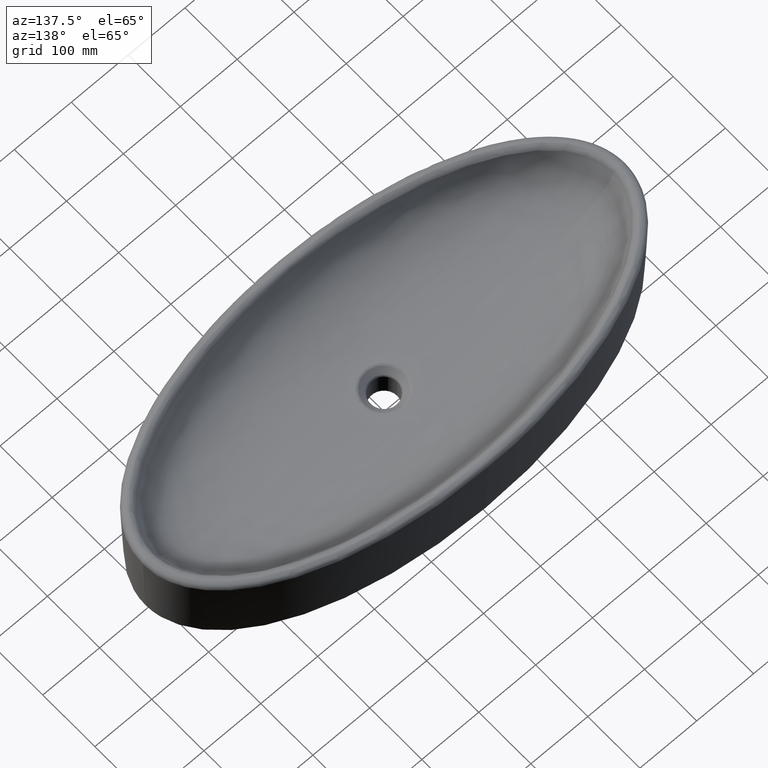
[diagram: clean part render]
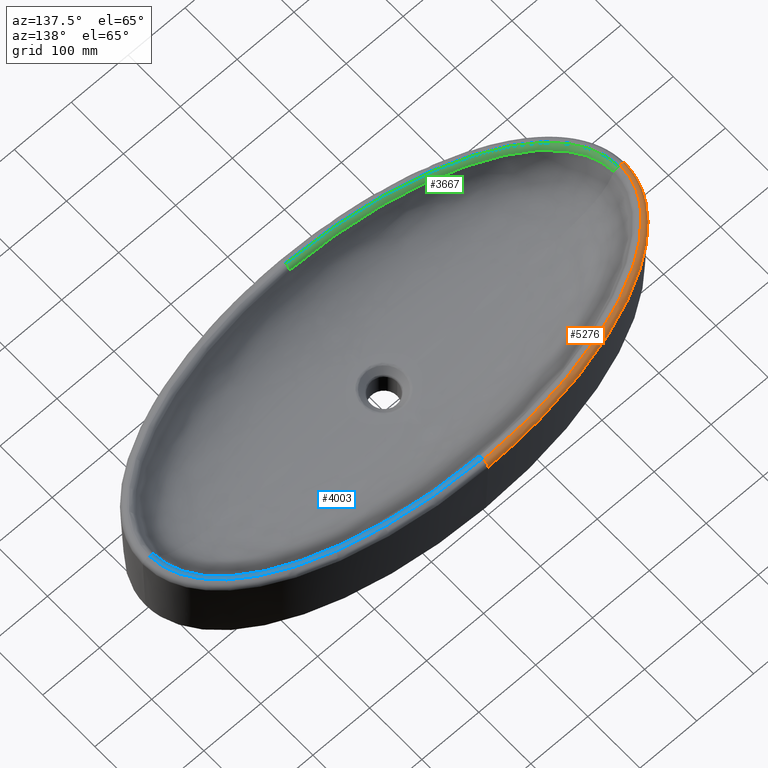
[diagram: same view with three faces highlighted in distinct colors, each labeled with its STEP entity id]
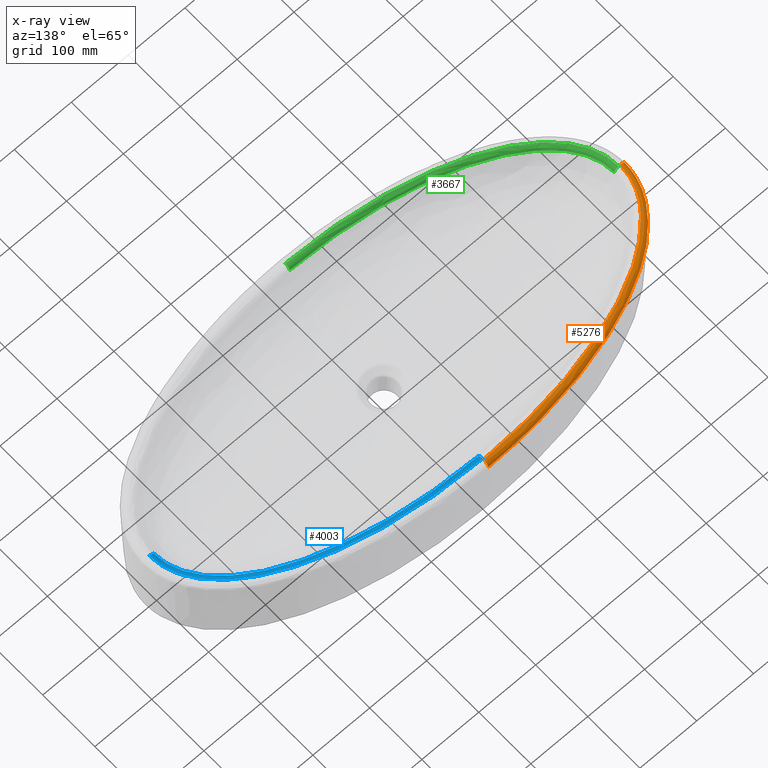
[diagram: x-ray of the same camera — body ghosted, the three highlighted faces saturated]
A machine part, auxiliary view with three faces highlighted in distinct colors.
The next image is the same camera in x-ray (body ghosted, the three faces saturated) — at least one of them is partly hidden behind the body in this view.
Their STEP definitions:

[orange] entity #5276 — the highlighted face is a freeform B-spline surface patch.
#1144=CARTESIAN_POINT('',(-4.150386472116E2,-2.591724418350E-14,
9.818224681251E1));
#1146=CARTESIAN_POINT('',(-4.150386472116E2,-2.591724418350E-14,
9.818224681251E1));
#1147=CARTESIAN_POINT('',(-4.150386427925E2,1.116402174270E0,9.818224681251E1));
#1148=CARTESIAN_POINT('',(-4.149986197003E2,3.279490087211E0,9.818224681251E1));
#1149=CARTESIAN_POINT('',(-4.148466934552E2,6.243410404951E0,9.818224681251E1));
#1150=CARTESIAN_POINT('',(-4.146095213901E2,9.141409513144E0,9.818224681251E1));
#1151=CARTESIAN_POINT('',(-4.142958277921E2,1.193493388381E1,9.818224681251E1));
#1152=CARTESIAN_POINT('',(-4.139103905440E2,1.465542215556E1,9.818224681251E1));
#1153=CARTESIAN_POINT('',(-4.134565465774E2,1.731271621597E1,9.818224681251E1));
#1154=CARTESIAN_POINT('',(-4.129389848835E2,1.990542383728E1,9.818224681251E1));
#1155=CARTESIAN_POINT('',(-4.123628409318E2,2.243517223750E1,9.818224681251E1));
#1156=CARTESIAN_POINT('',(-4.117188680485E2,2.495922334823E1,9.818224681251E1));
#1157=CARTESIAN_POINT('',(-4.110003320003E2,2.749782297155E1,9.818224681251E1));
#1158=CARTESIAN_POINT('',(-4.102451618129E2,2.992385907806E1,9.818224681251E1));
#1159=CARTESIAN_POINT('',(-4.094890668652E2,3.216310136037E1,9.818224681251E1));
#1160=CARTESIAN_POINT('',(-4.087273949896E2,3.426663366745E1,9.818224681251E1));
#1161=CARTESIAN_POINT('',(-4.079386884543E2,3.631298049024E1,9.818224681251E1));
#1162=CARTESIAN_POINT('',(-4.070919174408E2,3.838431418489E1,9.818224681251E1));
#1163=CARTESIAN_POINT('',(-4.061616509448E2,4.053112460480E1,9.818224681251E1));
#1164=CARTESIAN_POINT('',(-4.051567601662E2,4.272040978350E1,9.818224681251E1));
#1165=CARTESIAN_POINT('',(-4.041101836492E2,4.487870714713E1,9.818224681251E1));
#1166=CARTESIAN_POINT('',(-4.030696343997E2,4.691905731182E1,9.818224681251E1));
#1167=CARTESIAN_POINT('',(-4.020558605917E2,4.881852045498E1,9.818224681251E1));
#1168=CARTESIAN_POINT('',(-4.010486373454E2,5.062934164676E1,9.818224681251E1));
#1169=CARTESIAN_POINT('',(-4.000143842834E2,5.241764501350E1,9.818224681251E1));
#1170=CARTESIAN_POINT('',(-3.989131437444E2,5.425026508826E1,9.818224681251E1));
#1171=CARTESIAN_POINT('',(-3.977272183353E2,5.614854513539E1,9.818224681251E1));
#1172=CARTESIAN_POINT('',(-3.964903314053E2,5.805328402617E1,9.818224681251E1));
#1173=CARTESIAN_POINT('',(-3.952347783239E2,5.991696577061E1,9.818224681251E1));
#1174=CARTESIAN_POINT('',(-3.939621114654E2,6.174215782897E1,9.818224681251E1));
#1175=CARTESIAN_POINT('',(-3.926443293851E2,6.357019961238E1,9.818224681251E1));
#1176=CARTESIAN_POINT('',(-3.912207932971E2,6.548011436139E1,9.818224681251E1));
#1177=CARTESIAN_POINT('',(-3.896147714631E2,6.756060034928E1,9.818224681251E1));
#1178=CARTESIAN_POINT('',(-3.877583132831E2,6.987537011168E1,9.818224681251E1));
#1179=CARTESIAN_POINT('',(-3.856231240207E2,7.242943835023E1,9.818224681251E1));
#1180=CARTESIAN_POINT('',(-3.831923186186E2,7.521139608063E1,9.818224681251E1));
#1181=CARTESIAN_POINT('',(-3.804181997134E2,7.824010918457E1,9.818224681251E1));
#1182=CARTESIAN_POINT('',(-3.772296298752E2,8.155082833694E1,9.818224681251E1));
#1183=CARTESIAN_POINT('',(-3.735515679557E2,8.517157244767E1,9.818224681251E1));
#1184=CARTESIAN_POINT('',(-3.692965318507E2,8.912654312216E1,9.818224681251E1));
#1185=CARTESIAN_POINT('',(-3.643545335134E2,9.344724563074E1,9.818224681251E1));
#1186=CARTESIAN_POINT('',(-3.585939664E2,9.816361790655E1,9.818224681251E1));
#1187=CARTESIAN_POINT('',(-3.518533018717E2,1.033089125838E2,9.818224681251E1));
#1188=CARTESIAN_POINT('',(-3.439341979578E2,1.089113385949E2,9.818224681251E1));
#1189=CARTESIAN_POINT('',(-3.345964373706E2,1.149923048145E2,9.818224681251E1));
#1190=CARTESIAN_POINT('',(-3.235961124141E2,1.215512159991E2,9.818224681251E1));
#1191=CARTESIAN_POINT('',(-3.106402253818E2,1.285546464962E2,9.818224681251E1));
#1192=CARTESIAN_POINT('',(-2.960293527716E2,1.356659231351E2,9.818224681251E1));
#1193=CARTESIAN_POINT('',(-2.799845936209E2,1.426719643029E2,9.818224681251E1));
#1194=CARTESIAN_POINT('',(-2.622470325294E2,1.495834353179E2,9.818224681251E1));
#1195=CARTESIAN_POINT('',(-2.431717456273E2,1.561691561437E2,9.818224681251E1));
#1196=CARTESIAN_POINT('',(-2.229530003163E2,1.623213034023E2,9.818224681251E1));
#1197=CARTESIAN_POINT('',(-2.015626670172E2,1.680108918516E2,9.818224681251E1));
#1198=CARTESIAN_POINT('',(-1.791112469359E2,1.731720404155E2,9.818224681251E1));
#1199=CARTESIAN_POINT('',(-1.556690613241E2,1.777593614204E2,9.818224681251E1));
#1200=CARTESIAN_POINT('',(-1.313085441391E2,1.817308385600E2,9.818224681251E1));
#1201=CARTESIAN_POINT('',(-1.061310880339E2,1.850449707755E2,9.818224681251E1));
#1202=CARTESIAN_POINT('',(-8.025924259457E1,1.876635377264E2,9.818224681251E1));
#1203=CARTESIAN_POINT('',(-5.385979360854E1,1.895561149232E2,9.818224681251E1));
#1204=CARTESIAN_POINT('',(-2.705671403590E1,1.906990589403E2,9.818224681251E1));
#1205=CARTESIAN_POINT('',(-9.049268051723E0,1.909547386911E2,9.818224681251E1));
#1206=CARTESIAN_POINT('',(0.E0,1.909547640953E2,9.818224681251E1));
#1413=CARTESIAN_POINT('',(1.208171892206E-7,1.909547640953E2,8.918224681251E1));
#1414=DIRECTION('',(1.E0,-1.261042697348E-10,0.E0));
#1415=DIRECTION('',(1.260274504207E-10,9.993908270172E-1,-3.489949675613E-2));
#1416=AXIS2_PLACEMENT_3D('',#1413,#1414,#1415);
#1418=CARTESIAN_POINT('',(-4.150386472116E2,-1.498117906875E-7,
8.918224681251E1));
#1419=DIRECTION('',(-1.578725801456E-9,1.E0,0.E0));
#1420=DIRECTION('',(-9.993908270172E-1,-1.577764084350E-9,-3.489949675613E-2));
#1421=AXIS2_PLACEMENT_3D('',#1418,#1419,#1420);
#1423=CARTESIAN_POINT('',(-4.240331646548E2,3.538388127161E-13,
8.886815134171E1));
#1424=CARTESIAN_POINT('',(-4.240331618878E2,1.225707821591E0,8.886815120721E1));
#1425=CARTESIAN_POINT('',(-4.239893209093E2,3.590785277669E0,8.886814826904E1));
#1426=CARTESIAN_POINT('',(-4.238228421185E2,6.840037873163E0,8.886814560086E1));
#1427=CARTESIAN_POINT('',(-4.235633797239E2,1.000967617363E1,8.886814817405E1));
#1428=CARTESIAN_POINT('',(-4.232199921069E2,1.306782712219E1,8.886815166904E1));
#1429=CARTESIAN_POINT('',(-4.227984492679E2,1.604302976762E1,8.886815171953E1));
#1430=CARTESIAN_POINT('',(-4.223018780323E2,1.895053585531E1,8.886815005584E1));
#1431=CARTESIAN_POINT('',(-4.217359751051E2,2.178530696540E1,8.886814972625E1));
#1432=CARTESIAN_POINT('',(-4.211068316502E2,2.454754712271E1,8.886815096668E1));
#1433=CARTESIAN_POINT('',(-4.204056438973E2,2.729574821476E1,8.886815161695E1));
#1434=CARTESIAN_POINT('',(-4.196233414339E2,3.005964093982E1,8.886815060919E1));
#1435=CARTESIAN_POINT('',(-4.188016568769E2,3.269930093953E1,8.886815026412E1));
#1436=CARTESIAN_POINT('',(-4.179798551629E2,3.513308322387E1,8.886815078396E1));
#1437=CARTESIAN_POINT('',(-4.171532084828E2,3.741599129794E1,8.886815175244E1));
#1438=CARTESIAN_POINT('',(-4.162987202408E2,3.963297099422E1,8.886815196013E1));
#1439=CARTESIAN_POINT('',(-4.153819261934E2,4.187556527500E1,8.886815180296E1));
#1440=CARTESIAN_POINT('',(-4.143760690521E2,4.419677192523E1,8.886815189457E1));
#1441=CARTESIAN_POINT('',(-4.132912578042E2,4.656009683540E1,8.886815197612E1));
#1442=CARTESIAN_POINT('',(-4.121642062632E2,4.888430639855E1,8.886815034626E1));
#1443=CARTESIAN_POINT('',(-4.110444660306E2,5.107992400593E1,8.886814650310E1));
#1444=CARTESIAN_POINT('',(-4.099543710508E2,5.312236629139E1,8.886814306637E1));
#1445=CARTESIAN_POINT('',(-4.088723434112E2,5.506765353855E1,8.886814080120E1));
#1446=CARTESIAN_POINT('',(-4.077624888830E2,5.698665585668E1,8.886814014384E1));
#1447=CARTESIAN_POINT('',(-4.065822666388E2,5.895068534449E1,8.886814130235E1));
#1448=CARTESIAN_POINT('',(-4.053132624612E2,6.098191580874E1,8.886814425282E1));
#1449=CARTESIAN_POINT('',(-4.039920745998E2,6.301643482936E1,8.886814816569E1));
#1450=CARTESIAN_POINT('',(-4.026537714520E2,6.500291262034E1,8.886815154955E1));
#1451=CARTESIAN_POINT('',(-4.012995328401E2,6.694506969035E1,8.886815236780E1));
#1452=CARTESIAN_POINT('',(-3.998982283542E2,6.888896425109E1,8.886815181790E1));
#1453=CARTESIAN_POINT('',(-3.983861360364E2,7.091766898649E1,8.886815096961E1));
#1454=CARTESIAN_POINT('',(-3.966823765046E2,7.312474206537E1,8.886815050774E1));
#1455=CARTESIAN_POINT('',(-3.947159751883E2,7.557654623921E1,8.886815102496E1));
#1456=CARTESIAN_POINT('',(-3.924592556817E2,7.827593287845E1,8.886815146163E1));
#1457=CARTESIAN_POINT('',(-3.898942559696E2,8.121141956783E1,8.886815024080E1));
#1458=CARTESIAN_POINT('',(-3.869722750242E2,8.440147355472E1,8.886815025014E1));
#1459=CARTESIAN_POINT('',(-3.836222037002E2,8.787977628554E1,8.886815189141E1));
#1460=CARTESIAN_POINT('',(-3.797665029162E2,9.167528033132E1,8.886815030356E1));
#1461=CARTESIAN_POINT('',(-3.753155402817E2,9.581220021710E1,8.886815104E1));
#1462=CARTESIAN_POINT('',(-3.701608620156E2,1.003186549623E2,8.886815108067E1));
#1463=CARTESIAN_POINT('',(-3.641674778638E2,1.052254027695E2,8.886815261647E1));
#1464=CARTESIAN_POINT('',(-3.571757496169E2,1.105620920295E2,8.886814787489E1));
#1465=CARTESIAN_POINT('',(-3.489799080856E2,1.163599703427E2,8.886814417549E1));
#1466=CARTESIAN_POINT('',(-3.393473270316E2,1.226325382819E2,8.886815423382E1));
#1467=CARTESIAN_POINT('',(-3.280315768205E2,1.293790626340E2,8.886814719639E1));
#1468=CARTESIAN_POINT('',(-3.147398575964E2,1.365635811225E2,8.886815275247E1));
#1469=CARTESIAN_POINT('',(-2.997900654314E2,1.438392907062E2,8.886814984714E1));
#1470=CARTESIAN_POINT('',(-2.834116199289E2,1.509906326629E2,8.886815143597E1));
#1471=CARTESIAN_POINT('',(-2.653409824759E2,1.580314959446E2,8.886815101075E1));
#1472=CARTESIAN_POINT('',(-2.459433559659E2,1.647281445315E2,8.886815097029E1));
#1473=CARTESIAN_POINT('',(-2.254137121577E2,1.709746251923E2,8.886815125145E1));
#1474=CARTESIAN_POINT('',(-2.037218677962E2,1.767441786037E2,8.886815137391E1));
#1475=CARTESIAN_POINT('',(-1.809786413533E2,1.819722064575E2,8.886815122402E1));
#1476=CARTESIAN_POINT('',(-1.572531018494E2,1.866148135418E2,8.886815112166E1));
#1477=CARTESIAN_POINT('',(-1.326164050826E2,1.906311881507E2,8.886815142843E1));
#1478=CARTESIAN_POINT('',(-1.071685717670E2,1.939808096669E2,8.886815131679E1));
#1479=CARTESIAN_POINT('',(-8.103155571425E1,1.966261207011E2,8.886815134938E1));
#1480=CARTESIAN_POINT('',(-5.437213034207E1,1.985372891233E2,8.886815128450E1));
#1481=CARTESIAN_POINT('',(-2.731030569560E1,1.996911927868E2,8.886815156808E1));
#1482=CARTESIAN_POINT('',(-9.135407762061E0,1.999492683295E2,8.886815084756E1));
#1483=CARTESIAN_POINT('',(2.607577377151E-14,1.999492815385E2,
8.886815134171E1));
#1550=CARTESIAN_POINT('',(-4.240331646548E2,3.538388127161E-13,
8.886815134171E1));
#1577=VERTEX_POINT('',#1550);
#1578=VERTEX_POINT('',#1144);
#1579=VERTEX_POINT('',#1483);
#1580=VERTEX_POINT('',#1206);
#5015=CARTESIAN_POINT('',(-4.238786335041E2,-5.391332955024E0,
8.857950136390E1));
#5016=CARTESIAN_POINT('',(-4.239715895124E2,-3.599347983211E0,
8.857950136390E1));
#5017=CARTESIAN_POINT('',(-4.240491590079E2,-6.216068992211E-1,
8.857950136390E1));
#5018=CARTESIAN_POINT('',(-4.239795969589E2,3.457429169231E0,8.857950136390E1));
#5019=CARTESIAN_POINT('',(-4.238117869913E2,6.789778452661E0,8.857950136390E1));
#5020=CARTESIAN_POINT('',(-4.235533096977E2,9.960136950282E0,8.857950136390E1));
#5021=CARTESIAN_POINT('',(-4.232100735761E2,1.302990156810E1,8.857950136390E1));
#5022=CARTESIAN_POINT('',(-4.227883748831E2,1.601214607652E1,8.857950136390E1));
#5023=CARTESIAN_POINT('',(-4.222925896392E2,1.891974828112E1,8.857950136390E1));
#5024=CARTESIAN_POINT('',(-4.217267325483E2,2.175855077376E1,8.857950136390E1));
#5025=CARTESIAN_POINT('',(-4.210921775924E2,2.454626585709E1,8.857950136390E1));
#5026=CARTESIAN_POINT('',(-4.203889998954E2,2.730023497466E1,8.857950136390E1));
#5027=CARTESIAN_POINT('',(-4.196231721380E2,3.000714571178E1,8.857950136390E1));
#5028=CARTESIAN_POINT('',(-4.188150733163E2,3.261003746424E1,8.857950136390E1));
#5029=CARTESIAN_POINT('',(-4.179883660285E2,3.506470989258E1,8.857950136390E1));
#5030=CARTESIAN_POINT('',(-4.171480939444E2,3.738823157317E1,8.857950136390E1));
#5031=CARTESIAN_POINT('',(-4.162771276268E2,3.964797048816E1,8.857950136390E1));
#5032=CARTESIAN_POINT('',(-4.153493016492E2,4.191515471294E1,8.857950136390E1));
#5033=CARTESIAN_POINT('',(-4.143487124575E2,4.422155737651E1,8.857950136390E1));
#5034=CARTESIAN_POINT('',(-4.132809990101E2,4.654678959945E1,8.857950136390E1));
#5035=CARTESIAN_POINT('',(-4.121751703624E2,4.882881373429E1,8.857950136390E1));
#5036=CARTESIAN_POINT('',(-4.110633855348E2,5.101188627511E1,8.857950136390E1));
#5037=CARTESIAN_POINT('',(-4.099620426642E2,5.307781015411E1,8.857950136390E1));
#5038=CARTESIAN_POINT('',(-4.088614378729E2,5.505735677791E1,8.857950136390E1));
#5039=CARTESIAN_POINT('',(-4.077320403425E2,5.700953411412E1,8.857950136390E1));
#5040=CARTESIAN_POINT('',(-4.065449387705E2,5.898330899080E1,8.857950136390E1));
#5041=CARTESIAN_POINT('',(-4.052913753736E2,6.098859303434E1,8.857950136390E1));
#5042=CARTESIAN_POINT('',(-4.039853649482E2,6.299979052603E1,8.857950136390E1));
#5043=CARTESIAN_POINT('',(-4.026470831837E2,6.498672039852E1,8.857950136390E1));
#5044=CARTESIAN_POINT('',(-4.012774054714E2,6.695106607978E1,8.857950136390E1));
#5045=CARTESIAN_POINT('',(-3.998457998697E2,6.893590966740E1,8.857950136390E1));
#5046=CARTESIAN_POINT('',(-3.982968360238E2,7.101129450819E1,8.857950136390E1));
#5047=CARTESIAN_POINT('',(-3.965628072348E2,7.325291008618E1,8.857950136390E1));
#5048=CARTESIAN_POINT('',(-3.945847624806E2,7.571335541351E1,8.857950136390E1));
#5049=CARTESIAN_POINT('',(-3.923217648406E2,7.841401246058E1,8.857950136390E1));
#5050=CARTESIAN_POINT('',(-3.897380098358E2,8.136399465248E1,8.857950136390E1));
#5051=CARTESIAN_POINT('',(-3.867867606230E2,8.457745793589E1,8.857950136390E1));
#5052=CARTESIAN_POINT('',(-3.834045073353E2,8.807885544185E1,8.857950136390E1));
#5053=CARTESIAN_POINT('',(-3.795118067921E2,9.189844873283E1,8.857950136390E1));
#5054=CARTESIAN_POINT('',(-3.750143151923E2,9.606381084037E1,8.857950136390E1));
#5055=CARTESIAN_POINT('',(-3.698025032594E2,1.006024071997E2,8.857950136390E1));
#5056=CARTESIAN_POINT('',(-3.637385602407E2,1.055455387484E2,8.857950136390E1));
#5057=CARTESIAN_POINT('',(-3.566591471462E2,1.109233005865E2,8.857950136390E1));
#5058=CARTESIAN_POINT('',(-3.483596674409E2,1.167626306020E2,8.857950136390E1));
#5059=CARTESIAN_POINT('',(-3.386156407147E2,1.230707364924E2,8.857950136390E1));
#5060=CARTESIAN_POINT('',(-3.272039098497E2,1.298296931826E2,8.857950136390E1));
#5061=CARTESIAN_POINT('',(-3.140375363390E2,1.369036341643E2,8.857950136390E1));
#5062=CARTESIAN_POINT('',(-2.991784681956E2,1.441044775718E2,8.857950136390E1));
#5063=CARTESIAN_POINT('',(-2.827251315344E2,1.512568526082E2,8.857950136390E1));
#5064=CARTESIAN_POINT('',(-2.647840749290E2,1.582178853888E2,8.857950136390E1));
#5065=CARTESIAN_POINT('',(-2.454699023812E2,1.648656800214E2,8.857950136390E1));
#5066=CARTESIAN_POINT('',(-2.249336944266E2,1.710955861119E2,8.857950136390E1));
#5067=CARTESIAN_POINT('',(-2.032755292552E2,1.768389114575E2,8.857950136390E1));
#5068=CARTESIAN_POINT('',(-1.805581440249E2,1.820461316066E2,8.857950136390E1));
#5069=CARTESIAN_POINT('',(-1.568588934596E2,1.866700459188E2,8.857950136390E1));
#5070=CARTESIAN_POINT('',(-1.322613976483E2,1.906681024786E2,8.857950136390E1));
#5071=CARTESIAN_POINT('',(-1.068654006064E2,1.940007036775E2,8.857950136390E1));
#5072=CARTESIAN_POINT('',(-8.079646269704E1,1.966312036945E2,8.857950136390E1));
#5073=CARTESIAN_POINT('',(-5.419452561727E1,1.985321546928E2,8.857950136390E1));
#5074=CARTESIAN_POINT('',(-2.720275020491E1,1.996793514758E2,8.857950136390E1));
#5075=CARTESIAN_POINT('',(-7.431932019669E0,1.999579357056E2,8.857950136390E1));
#5076=CARTESIAN_POINT('',(3.321740269219E0,1.999302935345E2,8.857950136390E1));
#5077=CARTESIAN_POINT('',(4.982567455274E0,1.999217593545E2,8.857950136390E1));
#5078=CARTESIAN_POINT('',(-4.242596084018E2,-5.410716394929E0,
9.426296279875E1));
#5079=CARTESIAN_POINT('',(-4.243529045372E2,-3.612476678808E0,
9.426296279875E1));
#5080=CARTESIAN_POINT('',(-4.244307599112E2,-6.239489808749E-1,
9.426296279875E1));
#5081=CARTESIAN_POINT('',(-4.243609413517E2,3.470201729313E0,9.426296279875E1));
#5082=CARTESIAN_POINT('',(-4.241925088931E2,6.814886426344E0,9.426296279875E1));
#5083=CARTESIAN_POINT('',(-4.239330896520E2,9.996791698764E0,9.426296279875E1));
#5084=CARTESIAN_POINT('',(-4.235885944372E2,1.307781837898E1,9.426296279875E1));
#5085=CARTESIAN_POINT('',(-4.231653635503E2,1.607089547154E1,9.426296279875E1));
#5086=CARTESIAN_POINT('',(-4.226677687482E2,1.898911110596E1,9.426296279875E1));
#5087=CARTESIAN_POINT('',(-4.220998609434E2,2.183819796605E1,9.426296279875E1));
#5088=CARTESIAN_POINT('',(-4.214630382882E2,2.463586676273E1,9.426296279875E1));
#5089=CARTESIAN_POINT('',(-4.207574268460E2,2.739936342031E1,9.426296279875E1));
#5090=CARTESIAN_POINT('',(-4.199889510888E2,3.011563413417E1,9.426296279875E1));
#5091=CARTESIAN_POINT('',(-4.191780767028E2,3.272746380179E1,9.426296279875E1));
#5092=CARTESIAN_POINT('',(-4.183485641249E2,3.519046352779E1,9.426296279875E1));
#5093=CARTESIAN_POINT('',(-4.175054893777E2,3.752173241065E1,9.426296279875E1));
#5094=CARTESIAN_POINT('',(-4.166316787452E2,3.978884924081E1,9.426296279875E1));
#5095=CARTESIAN_POINT('',(-4.157008474131E2,4.206337613419E1,9.426296279875E1));
#5096=CARTESIAN_POINT('',(-4.146970697650E2,4.437712647615E1,9.426296279875E1));
#5097=CARTESIAN_POINT('',(-4.136260200484E2,4.670962136996E1,9.426296279875E1));
#5098=CARTESIAN_POINT('',(-4.125168413208E2,4.899855706778E1,9.426296279875E1));
#5099=CARTESIAN_POINT('',(-4.114017203791E2,5.118817978103E1,9.426296279875E1));
#5100=CARTESIAN_POINT('',(-4.102971056873E2,5.326024021884E1,9.426296279875E1));
#5101=CARTESIAN_POINT('',(-4.091932728384E2,5.524559201032E1,9.426296279875E1));
#5102=CARTESIAN_POINT('',(-4.080606123730E2,5.720340847333E1,9.426296279875E1));
#5103=CARTESIAN_POINT('',(-4.068701425161E2,5.918278265231E1,9.426296279875E1));
#5104=CARTESIAN_POINT('',(-4.056130993108E2,6.119363199657E1,9.426296279875E1));
#5105=CARTESIAN_POINT('',(-4.043035540262E2,6.321027149960E1,9.426296279875E1));
#5106=CARTESIAN_POINT('',(-4.029617615684E2,6.520241228906E1,9.426296279875E1));
#5107=CARTESIAN_POINT('',(-4.015885842248E2,6.717177616790E1,9.426296279875E1));
#5108=CARTESIAN_POINT('',(-4.001533600350E2,6.916163629104E1,9.426296279875E1));
#5109=CARTESIAN_POINT('',(-3.986005512115E2,7.124217187372E1,9.426296279875E1));
#5110=CARTESIAN_POINT('',(-3.968623082127E2,7.348923417018E1,9.426296279875E1));
#5111=CARTESIAN_POINT('',(-3.948795817188E2,7.595550099252E1,9.426296279875E1));
#5112=CARTESIAN_POINT('',(-3.926114243524E2,7.866231348215E1,9.426296279875E1));
#5113=CARTESIAN_POINT('',(-3.900219437176E2,8.161883078755E1,9.426296279875E1));
#5114=CARTESIAN_POINT('',(-3.870643745432E2,8.483917182861E1,9.426296279875E1));
#5115=CARTESIAN_POINT('',(-3.836752244225E2,8.834770484833E1,9.426296279875E1));
#5116=CARTESIAN_POINT('',(-3.797749351418E2,9.217473972295E1,9.426296279875E1));
#5117=CARTESIAN_POINT('',(-3.752690749400E2,9.634784601648E1,9.426296279875E1));
#5118=CARTESIAN_POINT('',(-3.700481764850E2,1.008943469781E2,9.426296279875E1));
#5119=CARTESIAN_POINT('',(-3.639742877776E2,1.058455765803E2,9.426296279875E1));
#5120=CARTESIAN_POINT('',(-3.568841397393E2,1.112314820597E2,9.426296279875E1));
#5121=CARTESIAN_POINT('',(-3.485728370494E2,1.170791176543E2,9.426296279875E1));
#5122=CARTESIAN_POINT('',(-3.388162485729E2,1.233953386736E2,9.426296279875E1));
#5123=CARTESIAN_POINT('',(-3.273911134200E2,1.301622162653E2,9.426296279875E1));
#5124=CARTESIAN_POINT('',(-3.142107166012E2,1.372436733982E2,9.426296279875E1));
#5125=CARTESIAN_POINT('',(-2.993374228695E2,1.444513894403E2,9.426296279875E1));
#5126=CARTESIAN_POINT('',(-2.828699259025E2,1.516099034917E2,9.426296279875E1));
#5127=CARTESIAN_POINT('',(-2.649148942207E2,1.585763424353E2,9.426296279875E1));
#5128=CARTESIAN_POINT('',(-2.455871416752E2,1.652287965209E2,9.426296279875E1));
#5129=CARTESIAN_POINT('',(-2.250377694188E2,1.714626851248E2,9.426296279875E1));
#5130=CARTESIAN_POINT('',(-2.033668585222E2,1.772093806694E2,9.426296279875E1));
#5131=CARTESIAN_POINT('',(-1.806371280814E2,1.824194222070E2,9.426296279875E1));
#5132=CARTESIAN_POINT('',(-1.569258864319E2,1.870456693089E2,9.426296279875E1));
#5133=CARTESIAN_POINT('',(-1.323167058109E2,1.910456198123E2,9.426296279875E1));
#5134=CARTESIAN_POINT('',(-1.069092710694E2,1.943797176569E2,9.426296279875E1));
#5135=CARTESIAN_POINT('',(-8.082912254664E1,1.970113451797E2,9.426296279875E1));
#5136=CARTESIAN_POINT('',(-5.421617728110E1,1.989130802297E2,9.426296279875E1));
#5137=CARTESIAN_POINT('',(-2.721348629757E1,2.000607394334E2,9.426296279875E1));
#5138=CARTESIAN_POINT('',(-7.434863244104E0,2.003394324603E2,9.426296279875E1));
#5139=CARTESIAN_POINT('',(3.323050523376E0,2.003117795372E2,9.426296279875E1));
#5140=CARTESIAN_POINT('',(4.984532938311E0,2.003032420470E2,9.426296279875E1));
#5141=CARTESIAN_POINT('',(-4.203079815204E2,-5.209663457724E0,
9.836050470562E1));
#5142=CARTESIAN_POINT('',(-4.203977497183E2,-3.476300498291E0,
9.836050470562E1));
#5143=CARTESIAN_POINT('',(-4.204726398441E2,-5.996559555928E-1,
9.836050470562E1));
#5144=CARTESIAN_POINT('',(-4.204054819168E2,3.337719531486E0,9.836050470562E1));
#5145=CARTESIAN_POINT('',(-4.202435061882E2,6.554456292115E0,9.836050470562E1));
#5146=CARTESIAN_POINT('',(-4.199938572099E2,9.616593711143E0,9.836050470562E1));
#5147=CARTESIAN_POINT('',(-4.196624218234E2,1.258080569095E1,9.836050470562E1));
#5148=CARTESIAN_POINT('',(-4.192550834754E2,1.546152280669E1,9.836050470562E1));
#5149=CARTESIAN_POINT('',(-4.187762581487E2,1.826965162215E1,9.836050470562E1));
#5150=CARTESIAN_POINT('',(-4.182296211845E2,2.101206483235E1,9.836050470562E1));
#5151=CARTESIAN_POINT('',(-4.176163200306E2,2.370648965813E1,9.836050470562E1));
#5152=CARTESIAN_POINT('',(-4.169359523847E2,2.637116278837E1,9.836050470562E1));
#5153=CARTESIAN_POINT('',(-4.161949427608E2,2.899034800944E1,9.836050470562E1));
#5154=CARTESIAN_POINT('',(-4.154128576582E2,3.150946997895E1,9.836050470562E1));
#5155=CARTESIAN_POINT('',(-4.146124426923E2,3.388609558030E1,9.836050470562E1));
#5156=CARTESIAN_POINT('',(-4.137984383090E2,3.613700732438E1,9.836050470562E1));
#5157=CARTESIAN_POINT('',(-4.129541300705E2,3.832759741193E1,9.836050470562E1));
#5158=CARTESIAN_POINT('',(-4.120544714993E2,4.052596315462E1,9.836050470562E1));
#5159=CARTESIAN_POINT('',(-4.110837658200E2,4.276350038218E1,9.836050470562E1));
#5160=CARTESIAN_POINT('',(-4.100473212474E2,4.502066389422E1,9.836050470562E1));
#5161=CARTESIAN_POINT('',(-4.089728909128E2,4.723791004448E1,9.836050470562E1));
#5162=CARTESIAN_POINT('',(-4.078923735073E2,4.935959170020E1,9.836050470562E1));
#5163=CARTESIAN_POINT('',(-4.068216954775E2,5.136800124947E1,9.836050470562E1));
#5164=CARTESIAN_POINT('',(-4.057513453581E2,5.329313947625E1,9.836050470562E1));
#5165=CARTESIAN_POINT('',(-4.046525293832E2,5.519246461819E1,9.836050470562E1));
#5166=CARTESIAN_POINT('',(-4.034969967501E2,5.711376055202E1,9.836050470562E1));
#5167=CARTESIAN_POINT('',(-4.022760475359E2,5.906688432938E1,9.836050470562E1));
#5168=CARTESIAN_POINT('',(-4.010031672517E2,6.102707707325E1,9.836050470562E1));
#5169=CARTESIAN_POINT('',(-3.996977891347E2,6.296516810859E1,9.836050470562E1));
#5170=CARTESIAN_POINT('',(-3.983609113923E2,6.488248119723E1,9.836050470562E1));
#5171=CARTESIAN_POINT('',(-3.969632206742E2,6.682030776985E1,9.836050470562E1));
#5172=CARTESIAN_POINT('',(-3.954502935245E2,6.884741775869E1,9.836050470562E1));
#5173=CARTESIAN_POINT('',(-3.937557620269E2,7.103798447170E1,9.836050470562E1));
#5174=CARTESIAN_POINT('',(-3.918215964451E2,7.344386837562E1,9.836050470562E1));
#5175=CARTESIAN_POINT('',(-3.896069578626E2,7.608683410682E1,9.836050470562E1));
#5176=CARTESIAN_POINT('',(-3.870768657961E2,7.897556655196E1,9.836050470562E1));
#5177=CARTESIAN_POINT('',(-3.841848498385E2,8.212456868810E1,9.836050470562E1));
#5178=CARTESIAN_POINT('',(-3.808672364800E2,8.555908925143E1,9.836050470562E1));
#5179=CARTESIAN_POINT('',(-3.770456606767E2,8.930893698814E1,9.836050470562E1));
#5180=CARTESIAN_POINT('',(-3.726266030247E2,9.340171742898E1,9.836050470562E1));
#5181=CARTESIAN_POINT('',(-3.674999536801E2,9.786622863392E1,9.836050470562E1));
#5182=CARTESIAN_POINT('',(-3.615292257089E2,1.027334619261E2,9.836050470562E1));
#5183=CARTESIAN_POINT('',(-3.545504248824E2,1.080348982391E2,9.836050470562E1));
#5184=CARTESIAN_POINT('',(-3.463617550065E2,1.137963849841E2,9.836050470562E1));
#5185=CARTESIAN_POINT('',(-3.367354621231E2,1.200284325784E2,9.836050470562E1));
#5186=CARTESIAN_POINT('',(-3.254493617057E2,1.267131513531E2,9.836050470562E1));
#5187=CARTESIAN_POINT('',(-3.124144203531E2,1.337166479021E2,9.836050470562E1));
#5188=CARTESIAN_POINT('',(-2.976886802194E2,1.408530781780E2,9.836050470562E1));
#5189=CARTESIAN_POINT('',(-2.813680597149E2,1.479479158643E2,9.836050470562E1));
#5190=CARTESIAN_POINT('',(-2.635579832199E2,1.548582798821E2,9.836050470562E1));
#5191=CARTESIAN_POINT('',(-2.443710879445E2,1.614624042231E2,9.836050470562E1));
#5192=CARTESIAN_POINT('',(-2.239582611907E2,1.676549845753E2,9.836050470562E1));
#5193=CARTESIAN_POINT('',(-2.024195541500E2,1.733667230423E2,9.836050470562E1));
#5194=CARTESIAN_POINT('',(-1.798178732628E2,1.785474999887E2,9.836050470562E1));
#5195=CARTESIAN_POINT('',(-1.562310080236E2,1.831495504449E2,9.836050470562E1));
#5196=CARTESIAN_POINT('',(-1.317430270109E2,1.871298561930E2,9.836050470562E1));
#5197=CARTESIAN_POINT('',(-1.064542287506E2,1.904484302187E2,9.836050470562E1));
#5198=CARTESIAN_POINT('',(-8.049036127806E1,1.930683627923E2,9.836050470562E1));
#5199=CARTESIAN_POINT('',(-5.399159740111E1,1.949619653385E2,9.836050470562E1));
#5200=CARTESIAN_POINT('',(-2.710212716964E1,1.961048281261E2,9.836050470562E1));
#5201=CARTESIAN_POINT('',(-7.404459389832E0,1.963823926657E2,9.836050470562E1));
#5202=CARTESIAN_POINT('',(3.309460033348E0,1.963548512664E2,9.836050470562E1));
#5203=CARTESIAN_POINT('',(4.964146147341E0,1.963463481105E2,9.836050470562E1));
#5204=CARTESIAN_POINT('',(-4.146223207376E2,-4.920385437644E0,
9.817760629702E1));
#5205=CARTESIAN_POINT('',(-4.147070128853E2,-3.280368141221E0,
9.817760629702E1));
#5206=CARTESIAN_POINT('',(-4.147776365670E2,-5.647027818016E-1,
9.817760629702E1));
#5207=CARTESIAN_POINT('',(-4.147143067977E2,3.147102132826E0,9.817760629702E1));
#5208=CARTESIAN_POINT('',(-4.145616211103E2,6.179745459006E0,9.817760629702E1));
#5209=CARTESIAN_POINT('',(-4.143260297346E2,9.069559071279E0,9.817760629702E1));
#5210=CARTESIAN_POINT('',(-4.140133850275E2,1.186569628570E1,9.817760629702E1));
#5211=CARTESIAN_POINT('',(-4.136289131056E2,1.458474816001E1,9.817760629702E1));
#5212=CARTESIAN_POINT('',(-4.131770935855E2,1.723448238813E1,9.817760629702E1));
#5213=CARTESIAN_POINT('',(-4.126610614297E2,1.982341193049E1,9.817760629702E1));
#5214=CARTESIAN_POINT('',(-4.120816033693E2,2.236928776264E1,9.817760629702E1));
#5215=CARTESIAN_POINT('',(-4.114375568809E2,2.489177210059E1,9.817760629702E1));
#5216=CARTESIAN_POINT('',(-4.107360659469E2,2.737126923987E1,9.817760629702E1));
#5217=CARTESIAN_POINT('',(-4.099954033026E2,2.975700196509E1,9.817760629702E1));
#5218=CARTESIAN_POINT('',(-4.092368544226E2,3.200935116386E1,9.817760629702E1));
#5219=CARTESIAN_POINT('',(-4.084646769206E2,3.414464383602E1,9.817760629702E1));
#5220=CARTESIAN_POINT('',(-4.076628171748E2,3.622512608387E1,9.817760629702E1));
#5221=CARTESIAN_POINT('',(-4.068080104455E2,3.831391000605E1,9.817760629702E1));
#5222=CARTESIAN_POINT('',(-4.058848892171E2,4.044179064692E1,9.817760629702E1));
#5223=CARTESIAN_POINT('',(-4.048982350514E2,4.259056622256E1,9.817760629702E1));
#5224=CARTESIAN_POINT('',(-4.038738012326E2,4.470466436280E1,9.817760629702E1));
#5225=CARTESIAN_POINT('',(-4.028430719205E2,4.672859139293E1,9.817760629702E1));
#5226=CARTESIAN_POINT('',(-4.018212224757E2,4.864541907688E1,9.817760629702E1));
#5227=CARTESIAN_POINT('',(-4.007990478161E2,5.048392111212E1,9.817760629702E1));
#5228=CARTESIAN_POINT('',(-3.997489278081E2,5.229908805281E1,9.817760629702E1));
#5229=CARTESIAN_POINT('',(-3.986436633833E2,5.413682012530E1,9.817760629702E1));
#5230=CARTESIAN_POINT('',(-3.974746467519E2,5.600688748013E1,9.817760629702E1));
#5231=CARTESIAN_POINT('',(-3.962545206272E2,5.788586376949E1,9.817760629702E1));
#5232=CARTESIAN_POINT('',(-3.950015360167E2,5.974618719759E1,9.817760629702E1));
#5233=CARTESIAN_POINT('',(-3.937168866918E2,6.158860881863E1,9.817760629702E1));
#5234=CARTESIAN_POINT('',(-3.923731997032E2,6.345156872835E1,9.817760629702E1));
#5235=CARTESIAN_POINT('',(-3.909176549114E2,6.540180916122E1,9.817760629702E1));
#5236=CARTESIAN_POINT('',(-3.892860161859E2,6.751108917060E1,9.817760629702E1));
#5237=CARTESIAN_POINT('',(-3.874217207820E2,6.983009321428E1,9.817760629702E1));
#5238=CARTESIAN_POINT('',(-3.852840858385E2,7.238119525959E1,9.817760629702E1));
#5239=CARTESIAN_POINT('',(-3.828394429463E2,7.517239781814E1,9.817760629702E1));
#5240=CARTESIAN_POINT('',(-3.800417459530E2,7.821875645422E1,9.817760629702E1));
#5241=CARTESIAN_POINT('',(-3.768270607746E2,8.154678677103E1,9.817760629702E1));
#5242=CARTESIAN_POINT('',(-3.731187391182E2,8.518557648122E1,9.817760629702E1));
#5243=CARTESIAN_POINT('',(-3.688245742934E2,8.916278286504E1,9.817760629702E1));
#5244=CARTESIAN_POINT('',(-3.638335320004E2,9.350932596261E1,9.817760629702E1));
#5245=CARTESIAN_POINT('',(-3.580112332637E2,9.825570408816E1,9.817760629702E1));
#5246=CARTESIAN_POINT('',(-3.511926404967E2,1.034356048814E2,9.817760629702E1));
#5247=CARTESIAN_POINT('',(-3.431804165766E2,1.090731393530E2,9.817760629702E1));
#5248=CARTESIAN_POINT('',(-3.337415949717E2,1.151840769447E2,9.817760629702E1));
#5249=CARTESIAN_POINT('',(-3.226555398436E2,1.217505843656E2,9.817760629702E1));
#5250=CARTESIAN_POINT('',(-3.098298820252E2,1.286419100420E2,9.817760629702E1));
#5251=CARTESIAN_POINT('',(-2.953164442498E2,1.356757732750E2,9.817760629702E1));
#5252=CARTESIAN_POINT('',(-2.792071518305E2,1.426789924397E2,9.817760629702E1));
#5253=CARTESIAN_POINT('',(-2.616056390601E2,1.495086750025E2,9.817760629702E1));
#5254=CARTESIAN_POINT('',(-2.426214113647E2,1.560432617729E2,9.817760629702E1));
#5255=CARTESIAN_POINT('',(-2.224050483541E2,1.621764071850E2,9.817760629702E1));
#5256=CARTESIAN_POINT('',(-2.010565582296E2,1.678378488779E2,9.817760629702E1));
#5257=CARTESIAN_POINT('',(-1.786391169852E2,1.729765194857E2,9.817760629702E1));
#5258=CARTESIAN_POINT('',(-1.552312064143E2,1.775437554407E2,9.817760629702E1));
#5259=CARTESIAN_POINT('',(-1.309176092390E2,1.814957960162E2,9.817760629702E1));
#5260=CARTESIAN_POINT('',(-1.057995069502E2,1.847920341357E2,9.817760629702E1));
#5261=CARTESIAN_POINT('',(-8.000294641899E1,1.873951398385E2,9.817760629702E1));
#5262=CARTESIAN_POINT('',(-5.366846845837E1,1.892770412150E2,9.817760629702E1));
#5263=CARTESIAN_POINT('',(-2.694190196482E1,1.904130028463E2,9.817760629702E1));
#5264=CARTESIAN_POINT('',(-7.360713862467E0,1.906889437012E2,9.817760629702E1));
#5265=CARTESIAN_POINT('',(3.289905829855E0,1.906615627639E2,9.817760629702E1));
#5266=CARTESIAN_POINT('',(4.934813322814E0,1.906531090088E2,9.817760629702E1));
#5267=(BOUNDED_SURFACE()B_SPLINE_SURFACE(3,3,((#5015,#5016,#5017,#5018,#5019,
#5020,#5021,#5022,#5023,#5024,#5025,#5026,#5027,#5028,#5029,#5030,#5031,#5032,
#5033,#5034,#5035,#5036,#5037,#5038,#5039,#5040,#5041,#5042,#5043,#5044,#5045,
#5046,#5047,#5048,#5049,#5050,#5051,#5052,#5053,#5054,#5055,#5056,#5057,#5058,
#5059,#5060,#5061,#5062,#5063,#5064,#5065,#5066,#5067,#5068,#5069,#5070,#5071,
#5072,#5073,#5074,#5075,#5076,#5077),(#5078,#5079,#5080,#5081,#5082,#5083,#5084,
#5085,#5086,#5087,#5088,#5089,#5090,#5091,#5092,#5093,#5094,#5095,#5096,#5097,
#5098,#5099,#5100,#5101,#5102,#5103,#5104,#5105,#5106,#5107,#5108,#5109,#5110,
#5111,#5112,#5113,#5114,#5115,#5116,#5117,#5118,#5119,#5120,#5121,#5122,#5123,
#5124,#5125,#5126,#5127,#5128,#5129,#5130,#5131,#5132,#5133,#5134,#5135,#5136,
#5137,#5138,#5139,#5140),(#5141,#5142,#5143,#5144,#5145,#5146,#5147,#5148,#5149,
#5150,#5151,#5152,#5153,#5154,#5155,#5156,#5157,#5158,#5159,#5160,#5161,#5162,
#5163,#5164,#5165,#5166,#5167,#5168,#5169,#5170,#5171,#5172,#5173,#5174,#5175,
#5176,#5177,#5178,#5179,#5180,#5181,#5182,#5183,#5184,#5185,#5186,#5187,#5188,
#5189,#5190,#5191,#5192,#5193,#5194,#5195,#5196,#5197,#5198,#5199,#5200,#5201,
#5202,#5203),(#5204,#5205,#5206,#5207,#5208,#5209,#5210,#5211,#5212,#5213,#5214,
#5215,#5216,#5217,#5218,#5219,#5220,#5221,#5222,#5223,#5224,#5225,#5226,#5227,
#5228,#5229,#5230,#5231,#5232,#5233,#5234,#5235,#5236,#5237,#5238,#5239,#5240,
#5241,#5242,#5243,#5244,#5245,#5246,#5247,#5248,#5249,#5250,#5251,#5252,#5253,
#5254,#5255,#5256,#5257,#5258,#5259,#5260,#5261,#5262,#5263,#5264,#5265,#5266)),
.UNSPECIFIED.,.F.,.F.,.F.)B_SPLINE_SURFACE_WITH_KNOTS((4,4),(4,1,1,1,1,1,1,1,1,
1,1,1,1,1,1,1,1,1,1,1,1,1,1,1,1,1,1,1,1,1,1,1,1,1,1,1,1,1,1,1,1,1,1,1,1,1,1,1,1,
1,1,1,1,1,1,1,1,1,1,1,4),(0.E0,1.E0),(-1.022281010014E-2,0.E0,6.699588726834E-3,
1.292317000302E-2,1.893260364172E-2,2.476614566947E-2,3.045998094859E-2,
3.604248024895E-2,4.151714606481E-2,4.690643568706E-2,5.230028847531E-2,
5.770897722738E-2,6.293260749832E-2,6.783288117070E-2,7.248052189126E-2,
7.703680089108E-2,8.167276302025E-2,8.648582506739E-2,9.142245428692E-2,
9.632801619899E-2,1.010325728964E-1,1.054825377516E-1,1.097707201252E-1,
1.140455907703E-1,1.184495332018E-1,1.230242109418E-1,1.276669608531E-1,
1.322773303363E-1,1.368564045219E-1,1.415091533911E-1,1.464294207267E-1,
1.518429791505E-1,1.579231752484E-1,1.647322521173E-1,1.722986089615E-1,
1.807126861113E-1,1.901176826011E-1,2.006689972018E-1,2.125397570708E-1,
2.259421080438E-1,2.411318661478E-1,2.584190606366E-1,2.781796180398E-1,
3.008433007830E-1,3.268656579866E-1,3.565280457679E-1,3.892860565966E-1,
4.247395883575E-1,4.630346911171E-1,5.036797988980E-1,5.463075084750E-1,
5.908850999196E-1,6.372810059995E-1,6.853745453415E-1,7.350485562166E-1,
7.861406345729E-1,8.384369063948E-1,8.916735587624E-1,9.456071440983E-1,1.E0,
1.009935221742E0),.UNSPECIFIED.)GEOMETRIC_REPRESENTATION_ITEM()RATIONAL_B_SPLINE_SURFACE(((1.196742864281E0,1.196742864281E0,1.196742864281E0,1.196742864281E0,
1.196742864281E0,1.196742864281E0,1.196742864281E0,1.196742864281E0,
1.196742864281E0,1.196742864281E0,1.196742864281E0,1.196742864281E0,
1.196742864281E0,1.196742864281E0,1.196742864281E0,1.196742864281E0,
1.196742864281E0,1.196742864281E0,1.196742864281E0,1.196742864281E0,
1.196742864281E0,1.196742864281E0,1.196742864281E0,1.196742864281E0,
1.196742864281E0,1.196742864281E0,1.196742864281E0,1.196742864281E0,
1.196742864281E0,1.196742864281E0,1.196742864281E0,1.196742864281E0,
1.196742864281E0,1.196742864281E0,1.196742864281E0,1.196742864281E0,
1.196742864281E0,1.196742864281E0,1.196742864281E0,1.196742864281E0,
1.196742864281E0,1.196742864281E0,1.196742864281E0,1.196742864281E0,
1.196742864281E0,1.196742864281E0,1.196742864281E0,1.196742864281E0,
1.196742864281E0,1.196742864281E0,1.196742864281E0,1.196742864281E0,
1.196742864281E0,1.196742864281E0,1.196742864281E0,1.196742864281E0,
1.196742864281E0,1.196742864281E0,1.196742864281E0,1.196742864281E0,
1.196742864281E0,1.196742864281E0,1.196742864281E0),(9.344190452397E-1,
9.344190452397E-1,9.344190452397E-1,9.344190452397E-1,9.344190452397E-1,
9.344190452397E-1,9.344190452397E-1,9.344190452397E-1,9.344190452397E-1,
9.344190452397E-1,9.344190452397E-1,9.344190452397E-1,9.344190452397E-1,
9.344190452397E-1,9.344190452397E-1,9.344190452397E-1,9.344190452397E-1,
9.344190452397E-1,9.344190452397E-1,9.344190452397E-1,9.344190452397E-1,
9.344190452397E-1,9.344190452397E-1,9.344190452397E-1,9.344190452397E-1,
9.344190452397E-1,9.344190452397E-1,9.344190452397E-1,9.344190452397E-1,
9.344190452397E-1,9.344190452397E-1,9.344190452397E-1,9.344190452397E-1,
9.344190452397E-1,9.344190452397E-1,9.344190452397E-1,9.344190452397E-1,
9.344190452397E-1,9.344190452397E-1,9.344190452397E-1,9.344190452397E-1,
9.344190452397E-1,9.344190452397E-1,9.344190452397E-1,9.344190452397E-1,
9.344190452397E-1,9.344190452397E-1,9.344190452397E-1,9.344190452397E-1,
9.344190452397E-1,9.344190452397E-1,9.344190452397E-1,9.344190452397E-1,
9.344190452397E-1,9.344190452397E-1,9.344190452397E-1,9.344190452397E-1,
9.344190452397E-1,9.344190452397E-1,9.344190452397E-1,9.344190452397E-1,
9.344190452397E-1,9.344190452397E-1),(9.344190452397E-1,9.344190452397E-1,
9.344190452397E-1,9.344190452397E-1,9.344190452397E-1,9.344190452397E-1,
9.344190452397E-1,9.344190452397E-1,9.344190452397E-1,9.344190452397E-1,
9.344190452397E-1,9.344190452397E-1,9.344190452397E-1,9.344190452397E-1,
9.344190452397E-1,9.344190452397E-1,9.344190452397E-1,9.344190452397E-1,
9.344190452397E-1,9.344190452397E-1,9.344190452397E-1,9.344190452397E-1,
9.344190452397E-1,9.344190452397E-1,9.344190452397E-1,9.344190452397E-1,
9.344190452397E-1,9.344190452397E-1,9.344190452397E-1,9.344190452397E-1,
9.344190452397E-1,9.344190452397E-1,9.344190452397E-1,9.344190452397E-1,
9.344190452397E-1,9.344190452397E-1,9.344190452397E-1,9.344190452397E-1,
9.344190452397E-1,9.344190452397E-1,9.344190452397E-1,9.344190452397E-1,
9.344190452397E-1,9.344190452397E-1,9.344190452397E-1,9.344190452397E-1,
9.344190452397E-1,9.344190452397E-1,9.344190452397E-1,9.344190452397E-1,
9.344190452397E-1,9.344190452397E-1,9.344190452397E-1,9.344190452397E-1,
9.344190452397E-1,9.344190452397E-1,9.344190452397E-1,9.344190452397E-1,
9.344190452397E-1,9.344190452397E-1,9.344190452397E-1,9.344190452397E-1,
9.344190452397E-1),(1.196742864281E0,1.196742864281E0,1.196742864281E0,
1.196742864281E0,1.196742864281E0,1.196742864281E0,1.196742864281E0,
1.196742864281E0,1.196742864281E0,1.196742864281E0,1.196742864281E0,
1.196742864281E0,1.196742864281E0,1.196742864281E0,1.196742864281E0,
1.196742864281E0,1.196742864281E0,1.196742864281E0,1.196742864281E0,
1.196742864281E0,1.196742864281E0,1.196742864281E0,1.196742864281E0,
1.196742864281E0,1.196742864281E0,1.196742864281E0,1.196742864281E0,
1.196742864281E0,1.196742864281E0,1.196742864281E0,1.196742864281E0,
1.196742864281E0,1.196742864281E0,1.196742864281E0,1.196742864281E0,
1.196742864281E0,1.196742864281E0,1.196742864281E0,1.196742864281E0,
1.196742864281E0,1.196742864281E0,1.196742864281E0,1.196742864281E0,
1.196742864281E0,1.196742864281E0,1.196742864281E0,1.196742864281E0,
1.196742864281E0,1.196742864281E0,1.196742864281E0,1.196742864281E0,
1.196742864281E0,1.196742864281E0,1.196742864281E0,1.196742864281E0,
1.196742864281E0,1.196742864281E0,1.196742864281E0,1.196742864281E0,
1.196742864281E0,1.196742864281E0,1.196742864281E0,1.196742864281E0)))REPRESENTATION_ITEM('')SURFACE());
#5269=ORIENTED_EDGE('',*,*,#5268,.T.);
#5270=ORIENTED_EDGE('',*,*,#5010,.T.);
#5271=ORIENTED_EDGE('',*,*,#4182,.F.);
#5273=ORIENTED_EDGE('',*,*,#5272,.F.);
#5274=EDGE_LOOP('',(#5269,#5270,#5271,#5273));
#5275=FACE_OUTER_BOUND('',#5274,.F.);
#5276=ADVANCED_FACE('',(#5275),#5267,.T.);
#1207=B_SPLINE_CURVE_WITH_KNOTS('',3,(#1146,#1147,#1148,#1149,#1150,#1151,#1152,
#1153,#1154,#1155,#1156,#1157,#1158,#1159,#1160,#1161,#1162,#1163,#1164,#1165,
#1166,#1167,#1168,#1169,#1170,#1171,#1172,#1173,#1174,#1175,#1176,#1177,#1178,
#1179,#1180,#1181,#1182,#1183,#1184,#1185,#1186,#1187,#1188,#1189,#1190,#1191,
#1192,#1193,#1194,#1195,#1196,#1197,#1198,#1199,#1200,#1201,#1202,#1203,#1204,
#1205,#1206),.UNSPECIFIED.,.F.,.F.,(4,1,1,1,1,1,1,1,1,1,1,1,1,1,1,1,1,1,1,1,1,1,
1,1,1,1,1,1,1,1,1,1,1,1,1,1,1,1,1,1,1,1,1,1,1,1,1,1,1,1,1,1,1,1,1,1,1,1,4),
(0.E0,1.724137931034E-2,3.448275862069E-2,5.172413793103E-2,6.896551724138E-2,
8.620689655172E-2,1.034482758621E-1,1.206896551724E-1,1.379310344828E-1,
1.551724137931E-1,1.724137931034E-1,1.896551724138E-1,2.068965517241E-1,
2.241379310345E-1,2.413793103448E-1,2.586206896552E-1,2.758620689655E-1,
2.931034482759E-1,3.103448275862E-1,3.275862068966E-1,3.448275862069E-1,
3.620689655172E-1,3.793103448276E-1,3.965517241379E-1,4.137931034483E-1,
4.310344827586E-1,4.482758620690E-1,4.655172413793E-1,4.827586206897E-1,5.E-1,
5.172413793103E-1,5.344827586207E-1,5.517241379310E-1,5.689655172414E-1,
5.862068965517E-1,6.034482758621E-1,6.206896551724E-1,6.379310344828E-1,
6.551724137931E-1,6.724137931034E-1,6.896551724138E-1,7.068965517241E-1,
7.241379310345E-1,7.413793103448E-1,7.586206896552E-1,7.758620689655E-1,
7.931034482759E-1,8.103448275862E-1,8.275862068966E-1,8.448275862069E-1,
8.620689655172E-1,8.793103448276E-1,8.965517241379E-1,9.137931034483E-1,
9.310344827586E-1,9.482758620690E-1,9.655172413793E-1,9.827586206897E-1,1.E0),
.UNSPECIFIED.);
#1417=CIRCLE('',#1416,9.E0);
#1422=CIRCLE('',#1421,9.E0);
#1484=B_SPLINE_CURVE_WITH_KNOTS('',3,(#1423,#1424,#1425,#1426,#1427,#1428,#1429,
#1430,#1431,#1432,#1433,#1434,#1435,#1436,#1437,#1438,#1439,#1440,#1441,#1442,
#1443,#1444,#1445,#1446,#1447,#1448,#1449,#1450,#1451,#1452,#1453,#1454,#1455,
#1456,#1457,#1458,#1459,#1460,#1461,#1462,#1463,#1464,#1465,#1466,#1467,#1468,
#1469,#1470,#1471,#1472,#1473,#1474,#1475,#1476,#1477,#1478,#1479,#1480,#1481,
#1482,#1483),.UNSPECIFIED.,.F.,.F.,(4,1,1,1,1,1,1,1,1,1,1,1,1,1,1,1,1,1,1,1,1,1,
1,1,1,1,1,1,1,1,1,1,1,1,1,1,1,1,1,1,1,1,1,1,1,1,1,1,1,1,1,1,1,1,1,1,1,1,4),
(0.E0,1.724137931034E-2,3.448275862069E-2,5.172413793103E-2,6.896551724138E-2,
8.620689655172E-2,1.034482758621E-1,1.206896551724E-1,1.379310344828E-1,
1.551724137931E-1,1.724137931034E-1,1.896551724138E-1,2.068965517241E-1,
2.241379310345E-1,2.413793103448E-1,2.586206896552E-1,2.758620689655E-1,
2.931034482759E-1,3.103448275862E-1,3.275862068966E-1,3.448275862069E-1,
3.620689655172E-1,3.793103448276E-1,3.965517241379E-1,4.137931034483E-1,
4.310344827586E-1,4.482758620690E-1,4.655172413793E-1,4.827586206897E-1,5.E-1,
5.172413793103E-1,5.344827586207E-1,5.517241379310E-1,5.689655172414E-1,
5.862068965517E-1,6.034482758621E-1,6.206896551724E-1,6.379310344828E-1,
6.551724137931E-1,6.724137931034E-1,6.896551724138E-1,7.068965517241E-1,
7.241379310345E-1,7.413793103448E-1,7.586206896552E-1,7.758620689655E-1,
7.931034482759E-1,8.103448275862E-1,8.275862068966E-1,8.448275862069E-1,
8.620689655172E-1,8.793103448276E-1,8.965517241379E-1,9.137931034483E-1,
9.310344827586E-1,9.482758620690E-1,9.655172413793E-1,9.827586206897E-1,1.E0),
.UNSPECIFIED.);
#4182=EDGE_CURVE('',#1578,#1580,#1207,.T.);
#5010=EDGE_CURVE('',#1579,#1580,#1417,.T.);
#5268=EDGE_CURVE('',#1577,#1579,#1484,.T.);
#5272=EDGE_CURVE('',#1577,#1578,#1422,.T.);

[blue] entity #4003 — the highlighted face is a freeform B-spline surface patch.
#392=CARTESIAN_POINT('',(4.042420120499E2,0.E0,9.235765168712E1));
#449=CARTESIAN_POINT('',(4.042420120499E2,0.E0,9.235765168712E1));
#450=CARTESIAN_POINT('',(4.042420088232E2,1.700178882710E0,9.235762404430E1));
#451=CARTESIAN_POINT('',(4.041389037525E2,5.108662020474E0,9.235583539357E1));
#452=CARTESIAN_POINT('',(4.036700634791E2,1.023822316561E1,9.234792743045E1));
#453=CARTESIAN_POINT('',(4.028817635206E2,1.538762319892E1,9.233492293485E1));
#454=CARTESIAN_POINT('',(4.017658126647E2,2.056187457017E1,9.231699021291E1));
#455=CARTESIAN_POINT('',(4.003064928647E2,2.578396065455E1,9.229444140315E1));
#456=CARTESIAN_POINT('',(3.984838158588E2,3.106982638182E1,9.226763154272E1));
#457=CARTESIAN_POINT('',(3.962735065659E2,3.643221920541E1,9.223700241929E1));
#458=CARTESIAN_POINT('',(3.936447705062E2,4.188646386100E1,9.220307047213E1));
#459=CARTESIAN_POINT('',(3.905627997846E2,4.744282758854E1,9.216637694208E1));
#460=CARTESIAN_POINT('',(3.869850576422E2,5.311417455133E1,9.212754761512E1));
#461=CARTESIAN_POINT('',(3.828609664291E2,5.891364506662E1,9.208721823961E1));
#462=CARTESIAN_POINT('',(3.781298913159E2,6.485568792592E1,9.204610535726E1));
#463=CARTESIAN_POINT('',(3.727285747892E2,7.094528852346E1,9.200488422720E1));
#464=CARTESIAN_POINT('',(3.665905306772E2,7.718048234436E1,9.196417157919E1));
#465=CARTESIAN_POINT('',(3.596331768974E2,8.356490608253E1,9.192460783265E1));
#466=CARTESIAN_POINT('',(3.517653258901E2,9.009757930237E1,9.188676073856E1));
#467=CARTESIAN_POINT('',(3.428875095379E2,9.677195137633E1,9.185111171042E1));
#468=CARTESIAN_POINT('',(3.328855892737E2,1.035798556451E2,9.181808879869E1));
#469=CARTESIAN_POINT('',(3.216485405229E2,1.104977583133E2,9.178791157132E1));
#470=CARTESIAN_POINT('',(3.090782669461E2,1.174843032374E2,9.176056183618E1));
#471=CARTESIAN_POINT('',(2.950647573677E2,1.244955022050E2,9.173580800567E1));
#472=CARTESIAN_POINT('',(2.794983564396E2,1.314799679858E2,9.171335946821E1));
#473=CARTESIAN_POINT('',(2.622089187356E2,1.383980154527E2,9.169260475382E1));
#474=CARTESIAN_POINT('',(2.433389243756E2,1.450829947314E2,9.167304058119E1));
#475=CARTESIAN_POINT('',(2.232288442542E2,1.513518543296E2,9.165411372731E1));
#476=CARTESIAN_POINT('',(2.019152809411E2,1.571548388E2,9.163496566771E1));
#477=CARTESIAN_POINT('',(1.794757262986E2,1.624318483544E2,9.161499541022E1));
#478=CARTESIAN_POINT('',(1.559957192488E2,1.671298587935E2,9.159394108790E1));
#479=CARTESIAN_POINT('',(1.315731471324E2,1.711996638622E2,9.157194620334E1));
#480=CARTESIAN_POINT('',(1.063299309039E2,1.745965995232E2,9.154969728527E1));
#481=CARTESIAN_POINT('',(8.036761534908E1,1.772848155052E2,9.152836943745E1));
#482=CARTESIAN_POINT('',(5.392055942474E1,1.792252229198E2,9.150974897559E1));
#483=CARTESIAN_POINT('',(2.709313763059E1,1.804004463524E2,9.149609900409E1));
#484=CARTESIAN_POINT('',(9.062022403456E0,1.806637995808E2,9.149225092207E1));
#485=CARTESIAN_POINT('',(1.652120684936E-14,1.806637705117E2,9.149223017208E1));
#570=CARTESIAN_POINT('',(1.652120684936E-14,1.806637705117E2,9.149223017208E1));
#857=CARTESIAN_POINT('',(4.126632235951E2,2.500884960507E-6,8.918224681320E1));
#858=DIRECTION('',(-2.684595521355E-8,1.E0,0.E0));
#859=DIRECTION('',(-9.356901716755E-1,-2.511949644256E-8,3.528227637638E-1));
#860=AXIS2_PLACEMENT_3D('',#857,#858,#859);
#862=CARTESIAN_POINT('',(-2.097624888653E-6,1.893622748014E2,8.918224681246E1));
#863=DIRECTION('',(-1.E0,-2.235706999754E-9,0.E0));
#864=DIRECTION('',(2.160811880879E-9,-9.665004766356E-1,2.566648177356E-1));
#865=AXIS2_PLACEMENT_3D('',#862,#863,#864);
#867=CARTESIAN_POINT('',(6.522371028527E-13,1.893622748014E2,9.818224681247E1));
#981=CARTESIAN_POINT('',(4.126632235951E2,2.721549885819E-14,9.818224681305E1));
#983=CARTESIAN_POINT('',(4.126632235951E2,2.721549885819E-14,9.818224681305E1));
#984=CARTESIAN_POINT('',(4.126632314659E2,1.870359255021E0,9.818224770218E1));
#985=CARTESIAN_POINT('',(4.125505838943E2,5.616888348820E0,9.818224639961E1));
#986=CARTESIAN_POINT('',(4.120384846827E2,1.125553208205E1,9.818224692315E1));
#987=CARTESIAN_POINT('',(4.111783204863E2,1.690877404511E1,9.818224678287E1));
#988=CARTESIAN_POINT('',(4.099623881524E2,2.258053637844E1,9.818224682046E1));
#989=CARTESIAN_POINT('',(4.083759869531E2,2.829029610593E1,9.818224681038E1));
#990=CARTESIAN_POINT('',(4.064001582386E2,3.405224237997E1,9.818224681308E1));
#991=CARTESIAN_POINT('',(4.040119902120E2,3.987685542983E1,9.818224681236E1));
#992=CARTESIAN_POINT('',(4.011822623800E2,4.577749824408E1,9.818224681255E1));
#993=CARTESIAN_POINT('',(3.978777973776E2,5.176289436392E1,9.818224681250E1));
#994=CARTESIAN_POINT('',(3.940580065095E2,5.784423555548E1,9.818224681252E1));
#995=CARTESIAN_POINT('',(3.896742252644E2,6.403350927687E1,9.818224681251E1));
#996=CARTESIAN_POINT('',(3.846680218901E2,7.034393081632E1,9.818224681251E1));
#997=CARTESIAN_POINT('',(3.789781825640E2,7.677984258946E1,9.818224681251E1));
#998=CARTESIAN_POINT('',(3.725401821656E2,8.333894061288E1,9.818224681251E1));
#999=CARTESIAN_POINT('',(3.652735984867E2,9.002449154208E1,9.818224681251E1));
#1000=CARTESIAN_POINT('',(3.570892280289E2,9.683552402612E1,9.818224681251E1));
#1001=CARTESIAN_POINT('',(3.478894955968E2,1.037657047447E2,9.818224681251E1));
#1002=CARTESIAN_POINT('',(3.375621760168E2,1.108071835220E2,9.818224681251E1));
#1003=CARTESIAN_POINT('',(3.259977813005E2,1.179371283791E2,9.818224681251E1));
#1004=CARTESIAN_POINT('',(3.130995750047E2,1.251150571074E2,9.818224681251E1));
#1005=CARTESIAN_POINT('',(2.987586017727E2,1.322980210394E2,9.818224681251E1));
#1006=CARTESIAN_POINT('',(2.828667225979E2,1.394354585002E2,9.818224681251E1));
#1007=CARTESIAN_POINT('',(2.652535793911E2,1.464892521447E2,9.818224681251E1));
#1008=CARTESIAN_POINT('',(2.460663056209E2,1.532923679909E2,9.818224681251E1));
#1009=CARTESIAN_POINT('',(2.256505628937E2,1.596619789712E2,9.818224681251E1));
#1010=CARTESIAN_POINT('',(2.040415617763E2,1.655508777183E2,9.818224681252E1));
#1011=CARTESIAN_POINT('',(1.813158310697E2,1.709008423284E2,9.818224681249E1));
#1012=CARTESIAN_POINT('',(1.575578124405E2,1.756603857463E2,9.818224681260E1));
#1013=CARTESIAN_POINT('',(1.328641818311E2,1.797814677542E2,9.818224681218E1));
#1014=CARTESIAN_POINT('',(1.073559060689E2,1.832201807475E2,9.818224681377E1));
#1015=CARTESIAN_POINT('',(8.113305789249E1,1.859411716119E2,9.818224680782E1));
#1016=CARTESIAN_POINT('',(5.442918561858E1,1.879054253287E2,9.818224683001E1));
#1017=CARTESIAN_POINT('',(2.734741070959E1,1.890954545575E2,9.818224674720E1));
#1018=CARTESIAN_POINT('',(9.146109491514E0,1.893622984891E2,9.818224695325E1));
#1019=CARTESIAN_POINT('',(6.522371028527E-13,1.893622748014E2,
9.818224681247E1));
#1565=VERTEX_POINT('',#570);
#1567=VERTEX_POINT('',#867);
#1571=VERTEX_POINT('',#392);
#1572=VERTEX_POINT('',#981);
#3838=CARTESIAN_POINT('',(4.040433600158E2,-4.455704088655E0,9.213380976511E1));
#3839=CARTESIAN_POINT('',(4.041222405621E2,-2.971716606196E0,9.213512230099E1));
#3840=CARTESIAN_POINT('',(4.042068165725E2,2.173472882580E-1,9.213650667182E1));
#3841=CARTESIAN_POINT('',(4.040577084698E2,5.121444403121E0,9.213389242049E1));
#3842=CARTESIAN_POINT('',(4.035873309502E2,1.025551646918E1,9.212587240907E1));
#3843=CARTESIAN_POINT('',(4.027962636983E2,1.541231553576E1,9.211268210621E1));
#3844=CARTESIAN_POINT('',(4.016747965651E2,2.060040306914E1,9.209447227096E1));
#3845=CARTESIAN_POINT('',(4.002081754656E2,2.583534646704E1,9.207158222558E1));
#3846=CARTESIAN_POINT('',(3.983765822879E2,3.113328373450E1,9.204438169298E1));
#3847=CARTESIAN_POINT('',(3.961547760982E2,3.650906696568E1,9.201331379290E1));
#3848=CARTESIAN_POINT('',(3.935125526612E2,4.197609771693E1,9.197891842313E1));
#3849=CARTESIAN_POINT('',(3.904137429313E2,4.754689693769E1,9.194173669535E1));
#3850=CARTESIAN_POINT('',(3.868152681708E2,5.323418799278E1,9.190240750649E1));
#3851=CARTESIAN_POINT('',(3.826660946342E2,5.905077886926E1,9.186158396013E1));
#3852=CARTESIAN_POINT('',(3.779079701368E2,6.500745831081E1,9.182002091365E1));
#3853=CARTESIAN_POINT('',(3.724770801141E2,7.111020036704E1,9.177839103501E1));
#3854=CARTESIAN_POINT('',(3.663023757483E2,7.736127222980E1,9.173729106355E1));
#3855=CARTESIAN_POINT('',(3.593032004823E2,8.376122071745E1,9.169739039198E1));
#3856=CARTESIAN_POINT('',(3.513885572138E2,9.030844287515E1,9.165925999817E1));
#3857=CARTESIAN_POINT('',(3.424573549E2,9.699699180153E1,9.162337952676E1));
#3858=CARTESIAN_POINT('',(3.324021876672E2,1.038135468821E2,9.159019731689E1));
#3859=CARTESIAN_POINT('',(3.211153461478E2,1.107334948051E2,9.155991573443E1));
#3860=CARTESIAN_POINT('',(3.084903923868E2,1.177207681137E2,9.153247679235E1));
#3861=CARTESIAN_POINT('',(2.944173142563E2,1.247312460625E2,9.150764245366E1));
#3862=CARTESIAN_POINT('',(2.787838207325E2,1.317130317191E2,9.148511621548E1));
#3863=CARTESIAN_POINT('',(2.615534536386E2,1.385755327551E2,9.146441578242E1));
#3864=CARTESIAN_POINT('',(2.428156855196E2,1.451899677561E2,9.144491433392E1));
#3865=CARTESIAN_POINT('',(2.227307902053E2,1.514322490869E2,9.142590356382E1));
#3866=CARTESIAN_POINT('',(2.014419373745E2,1.572109059323E2,9.140665029443E1));
#3867=CARTESIAN_POINT('',(1.790335230305E2,1.624652374510E2,9.138656391705E1));
#3868=CARTESIAN_POINT('',(1.555915346963E2,1.671420922647E2,9.136539163406E1));
#3869=CARTESIAN_POINT('',(1.312161764288E2,1.711925934439E2,9.134328741371E1));
#3870=CARTESIAN_POINT('',(1.060211151893E2,1.745731947423E2,9.132094053032E1));
#3871=CARTESIAN_POINT('',(8.015033304619E1,1.772447087381E2,9.129956462533E1));
#3872=CARTESIAN_POINT('',(5.375493630546E1,1.791763827077E2,9.128088450389E1));
#3873=CARTESIAN_POINT('',(2.698221518443E1,1.803458363221E2,9.126720125426E1));
#3874=CARTESIAN_POINT('',(7.429741280516E0,1.806292638921E2,9.126302932313E1));
#3875=CARTESIAN_POINT('',(-3.179519888543E0,1.806021173493E2,9.126339959553E1));
#3876=CARTESIAN_POINT('',(-4.769241700408E0,1.805939934097E2,9.126351726468E1));
#3877=CARTESIAN_POINT('',(4.054986302588E2,-4.532066879667E0,9.633153619143E1));
#3878=CARTESIAN_POINT('',(4.055795229556E2,-3.022836688362E0,9.633281252152E1));
#3879=CARTESIAN_POINT('',(4.056662380080E2,2.210104924758E-1,9.633397335285E1));
#3880=CARTESIAN_POINT('',(4.055132741672E2,5.209851931577E0,9.633180145025E1));
#3881=CARTESIAN_POINT('',(4.050309182796E2,1.043156659251E1,9.632515672976E1));
#3882=CARTESIAN_POINT('',(4.042201353747E2,1.567423858928E1,9.631421579963E1));
#3883=CARTESIAN_POINT('',(4.030715246113E2,2.094561036763E1,9.629909346923E1));
#3884=CARTESIAN_POINT('',(4.015709262501E2,2.626016500736E1,9.628005361600E1));
#3885=CARTESIAN_POINT('',(3.996991558388E2,3.163341450067E1,9.625738413485E1));
#3886=CARTESIAN_POINT('',(3.974317079987E2,3.707963849594E1,9.623143288300E1));
#3887=CARTESIAN_POINT('',(3.947392200680E2,4.261178079382E1,9.620262956023E1));
#3888=CARTESIAN_POINT('',(3.915863344683E2,4.824213417318E1,9.617140739888E1));
#3889=CARTESIAN_POINT('',(3.879308629860E2,5.398326363565E1,9.613828571620E1));
#3890=CARTESIAN_POINT('',(3.837226157762E2,5.984800471941E1,9.610380130385E1));
#3891=CARTESIAN_POINT('',(3.789042342066E2,6.584725858789E1,9.606858361841E1));
#3892=CARTESIAN_POINT('',(3.734126226352E2,7.198731639667E1,9.603320006595E1));
#3893=CARTESIAN_POINT('',(3.671773157095E2,7.827084798957E1,9.599816012303E1));
#3894=CARTESIAN_POINT('',(3.601182753675E2,8.469881053661E1,9.596404155845E1));
#3895=CARTESIAN_POINT('',(3.521449600571E2,9.127009342677E1,9.593134413923E1));
#3896=CARTESIAN_POINT('',(3.431566176748E2,9.797925231763E1,9.590049374479E1));
#3897=CARTESIAN_POINT('',(3.330461490114E2,1.048134496762E2,9.587189261442E1));
#3898=CARTESIAN_POINT('',(3.217059436235E2,1.117485224685E2,9.584573269303E1));
#3899=CARTESIAN_POINT('',(3.090295101551E2,1.187487490297E2,9.582198017051E1));
#3900=CARTESIAN_POINT('',(2.949067420449E2,1.257702281757E2,9.580044287371E1));
#3901=CARTESIAN_POINT('',(2.792253168659E2,1.327611877227E2,9.578087497779E1));
#3902=CARTESIAN_POINT('',(2.619488079157E2,1.396310175428E2,9.576286617903E1));
#3903=CARTESIAN_POINT('',(2.431668379339E2,1.462508036502E2,9.574587694786E1));
#3904=CARTESIAN_POINT('',(2.230397837275E2,1.524963244786E2,9.572929331857E1));
#3905=CARTESIAN_POINT('',(2.017107286282E2,1.582760164218E2,9.571247618074E1));
#3906=CARTESIAN_POINT('',(1.792638681088E2,1.635291545817E2,9.569490770156E1));
#3907=CARTESIAN_POINT('',(1.557850435209E2,1.682026817724E2,9.567636317608E1));
#3908=CARTESIAN_POINT('',(1.313743500270E2,1.722479780055E2,9.565697345803E1));
#3909=CARTESIAN_POINT('',(1.061453934345E2,1.756219847801E2,9.563734066353E1));
#3910=CARTESIAN_POINT('',(8.024206821202E1,1.782862419287E2,9.561853231612E1));
#3911=CARTESIAN_POINT('',(5.381529750164E1,1.802109597163E2,9.560207283173E1));
#3912=CARTESIAN_POINT('',(2.701209723950E1,1.813749797202E2,9.559000229389E1));
#3913=CARTESIAN_POINT('',(7.437950227367E0,1.816566605110E2,9.558631928953E1));
#3914=CARTESIAN_POINT('',(-3.183034046158E0,1.816296668095E2,9.558664628354E1));
#3915=CARTESIAN_POINT('',(-4.774512454570E0,1.816215920030E2,9.558675042677E1));
#3916=CARTESIAN_POINT('',(4.092704479325E2,-4.729986424150E0,9.867228843595E1));
#3917=CARTESIAN_POINT('',(4.093552284941E2,-3.155261787603E0,9.867312823778E1));
#3918=CARTESIAN_POINT('',(4.094460932066E2,2.304985349286E-1,9.867368473919E1));
#3919=CARTESIAN_POINT('',(4.092857697130E2,5.438874703022E0,9.867266975144E1));
#3920=CARTESIAN_POINT('',(4.087803880424E2,1.088860888028E1,9.866958839155E1));
#3921=CARTESIAN_POINT('',(4.079314948867E2,1.635662229267E1,9.866449829683E1));
#3922=CARTESIAN_POINT('',(4.067300504457E2,2.184939868638E1,9.865743945372E1));
#3923=CARTESIAN_POINT('',(4.051627208907E2,2.737932276986E1,9.864851157716E1));
#3924=CARTESIAN_POINT('',(4.032111586656E2,3.296084385801E1,9.863782398397E1));
#3925=CARTESIAN_POINT('',(4.008518552009E2,3.860713601183E1,9.862551268379E1));
#3926=CARTESIAN_POINT('',(3.980566330442E2,4.433011425322E1,9.861175381855E1));
#3927=CARTESIAN_POINT('',(3.947912687401E2,5.014146481681E1,9.859672848526E1));
#3928=CARTESIAN_POINT('',(3.910148943306E2,5.605309465080E1,9.858066435400E1));
#3929=CARTESIAN_POINT('',(3.866785972663E2,6.207748930266E1,9.856380468574E1));
#3930=CARTESIAN_POINT('',(3.817264737984E2,6.822518767298E1,9.854644668716E1));
#3931=CARTESIAN_POINT('',(3.760966210863E2,7.450258039295E1,9.852886672531E1));
#3932=CARTESIAN_POINT('',(3.697195895016E2,8.091262414765E1,9.851132083893E1));
#3933=CARTESIAN_POINT('',(3.625165548869E2,8.745643368453E1,9.849410736567E1));
#3934=CARTESIAN_POINT('',(3.543979600619E2,9.413329968457E1,9.847749311384E1));
#3935=CARTESIAN_POINT('',(3.452639033763E2,1.009382580019E2,9.846171296910E1));
#3936=CARTESIAN_POINT('',(3.350081949544E2,1.078589108114E2,9.844699386979E1));
#3937=CARTESIAN_POINT('',(3.235237778455E2,1.148716951590E2,9.843345670021E1));
#3938=CARTESIAN_POINT('',(3.107044524756E2,1.219414994795E2,9.842110446523E1));
#3939=CARTESIAN_POINT('',(2.964403691483E2,1.290249185638E2,9.840985467041E1));
#3940=CARTESIAN_POINT('',(2.806196532014E2,1.360705279391E2,9.839959310001E1));
#3941=CARTESIAN_POINT('',(2.632065615316E2,1.429879080230E2,9.839011542020E1));
#3942=CARTESIAN_POINT('',(2.442917594159E2,1.496482184410E2,9.838114492139E1));
#3943=CARTESIAN_POINT('',(2.240364528531E2,1.559274736270E2,9.837236128678E1));
#3944=CARTESIAN_POINT('',(2.025838337710E2,1.617345727350E2,9.836342658197E1));
#3945=CARTESIAN_POINT('',(1.800176608624E2,1.670093490289E2,9.835406325642E1));
#3946=CARTESIAN_POINT('',(1.564233272411E2,1.716992889443E2,9.834414707907E1));
#3947=CARTESIAN_POINT('',(1.319004729787E2,1.757563350089E2,9.833374304731E1));
#3948=CARTESIAN_POINT('',(1.065623409085E2,1.791380503920E2,9.832317112686E1));
#3949=CARTESIAN_POINT('',(8.055241583974E1,1.818066904012E2,9.831300774784E1));
#3950=CARTESIAN_POINT('',(5.402102717270E1,1.837332811080E2,9.830408503839E1));
#3951=CARTESIAN_POINT('',(2.711451730677E1,1.848975782112E2,9.829752441115E1));
#3952=CARTESIAN_POINT('',(7.466091598854E0,1.851790433149E2,9.829551918451E1));
#3953=CARTESIAN_POINT('',(-3.195080719205E0,1.851520612131E2,9.829569735995E1));
#3954=CARTESIAN_POINT('',(-4.792579599802E0,1.851439920507E2,9.829575438668E1));
#3955=CARTESIAN_POINT('',(4.136721755246E2,-4.960959364558E0,9.810935616313E1));
#3956=CARTESIAN_POINT('',(4.137609811352E2,-3.309775589855E0,9.810955431586E1));
#3957=CARTESIAN_POINT('',(4.138561505289E2,2.415686632608E-1,9.810939593413E1));
#3958=CARTESIAN_POINT('',(4.136882544718E2,5.706100981011E0,9.810973509166E1));
#3959=CARTESIAN_POINT('',(4.131590960047E2,1.142226848354E1,9.811081173991E1));
#3960=CARTESIAN_POINT('',(4.122707396987E2,1.715432624636E1,9.811255763482E1));
#3961=CARTESIAN_POINT('',(4.110143970817E2,2.290762248772E1,9.811493252508E1));
#3962=CARTESIAN_POINT('',(4.093774224790E2,2.869236781656E1,9.811785665372E1));
#3963=CARTESIAN_POINT('',(4.073421342341E2,3.452198740163E1,9.812124386385E1));
#3964=CARTESIAN_POINT('',(4.048858360994E2,4.040851095868E1,9.812499646399E1));
#3965=CARTESIAN_POINT('',(4.019813494794E2,4.636271374516E1,9.812900706145E1));
#3966=CARTESIAN_POINT('',(3.985954005538E2,5.239556830510E1,9.813317310886E1));
#3967=CARTESIAN_POINT('',(3.946882809751E2,5.851811810373E1,9.813738897703E1));
#3968=CARTESIAN_POINT('',(3.902122177179E2,6.474227766072E1,9.814155843506E1));
#3969=CARTESIAN_POINT('',(3.851126726707E2,7.107791092380E1,9.814558816235E1));
#3970=CARTESIAN_POINT('',(3.793288762896E2,7.753124588698E1,9.814940785317E1));
#3971=CARTESIAN_POINT('',(3.727923727296E2,8.410528199962E1,9.815296726280E1));
#3972=CARTESIAN_POINT('',(3.654256043280E2,9.080096834867E1,9.815622244327E1));
#3973=CARTESIAN_POINT('',(3.571400869177E2,9.761772641020E1,9.815914966809E1));
#3974=CARTESIAN_POINT('',(3.478369005194E2,1.045508351439E2,9.816174100701E1));
#3975=CARTESIAN_POINT('',(3.374109606355E2,1.115880964353E2,9.816399728529E1));
#3976=CARTESIAN_POINT('',(3.257559708713E2,1.187064288756E2,9.816593946305E1));
#3977=CARTESIAN_POINT('',(3.127662381424E2,1.258713224898E2,9.816760353577E1));
#3978=CARTESIAN_POINT('',(2.983324060543E2,1.330399226730E2,9.816903145763E1));
#3979=CARTESIAN_POINT('',(2.823433266506E2,1.401612201406E2,9.817026270172E1));
#3980=CARTESIAN_POINT('',(2.647642868681E2,1.471451089947E2,9.817134077907E1));
#3981=CARTESIAN_POINT('',(2.456874206747E2,1.538629957380E2,9.817230980428E1));
#3982=CARTESIAN_POINT('',(2.252751186866E2,1.601913952045E2,9.817321110741E1));
#3983=CARTESIAN_POINT('',(2.036708278106E2,1.660400179274E2,9.817408036245E1));
#3984=CARTESIAN_POINT('',(1.809578290241E2,1.713495879594E2,9.817494036090E1));
#3985=CARTESIAN_POINT('',(1.572209655745E2,1.760683416961E2,9.817579479803E1));
#3986=CARTESIAN_POINT('',(1.325592797478E2,1.801488382167E2,9.817662952199E1));
#3987=CARTESIAN_POINT('',(1.070855118945E2,1.835491182948E2,9.817741352458E1));
#3988=CARTESIAN_POINT('',(8.094259829055E1,1.862318209958E2,9.817810676846E1));
#3989=CARTESIAN_POINT('',(5.428012951963E1,1.881682762129E2,9.817866676457E1));
#3990=CARTESIAN_POINT('',(2.724367637303E1,1.893384372151E2,9.817904938907E1));
#3991=CARTESIAN_POINT('',(7.501581464125E0,1.896213141723E2,9.817916054198E1));
#3992=CARTESIAN_POINT('',(-3.210273016688E0,1.895941972418E2,9.817915090562E1));
#3993=CARTESIAN_POINT('',(-4.815364080454E0,1.895860877105E2,9.817914829429E1));
#3994=(BOUNDED_SURFACE()B_SPLINE_SURFACE(3,3,((#3838,#3839,#3840,#3841,#3842,
#3843,#3844,#3845,#3846,#3847,#3848,#3849,#3850,#3851,#3852,#3853,#3854,#3855,
#3856,#3857,#3858,#3859,#3860,#3861,#3862,#3863,#3864,#3865,#3866,#3867,#3868,
#3869,#3870,#3871,#3872,#3873,#3874,#3875,#3876),(#3877,#3878,#3879,#3880,#3881,
#3882,#3883,#3884,#3885,#3886,#3887,#3888,#3889,#3890,#3891,#3892,#3893,#3894,
#3895,#3896,#3897,#3898,#3899,#3900,#3901,#3902,#3903,#3904,#3905,#3906,#3907,
#3908,#3909,#3910,#3911,#3912,#3913,#3914,#3915),(#3916,#3917,#3918,#3919,#3920,
#3921,#3922,#3923,#3924,#3925,#3926,#3927,#3928,#3929,#3930,#3931,#3932,#3933,
#3934,#3935,#3936,#3937,#3938,#3939,#3940,#3941,#3942,#3943,#3944,#3945,#3946,
#3947,#3948,#3949,#3950,#3951,#3952,#3953,#3954),(#3955,#3956,#3957,#3958,#3959,
#3960,#3961,#3962,#3963,#3964,#3965,#3966,#3967,#3968,#3969,#3970,#3971,#3972,
#3973,#3974,#3975,#3976,#3977,#3978,#3979,#3980,#3981,#3982,#3983,#3984,#3985,
#3986,#3987,#3988,#3989,#3990,#3991,#3992,#3993)),.UNSPECIFIED.,.F.,.F.,.F.)B_SPLINE_SURFACE_WITH_KNOTS((4,4),(4,1,1,1,1,1,1,1,1,1,1,1,1,1,1,1,1,1,1,1,1,1,1,1,1,
1,1,1,1,1,1,1,1,1,1,1,4),(0.E0,1.E0),(-9.798709808774E-3,0.E0,1.123192414618E-2,
2.254265346347E-2,3.397310366251E-2,4.557991730758E-2,5.744551837172E-2,
6.965300105783E-2,8.228498175451E-2,9.543202959982E-2,1.091880689388E-1,
1.236595189313E-1,1.389679533031E-1,1.552487804878E-1,1.726367177622E-1,
1.912718451290E-1,2.113217060181E-1,2.329717522433E-1,2.564238490243E-1,
2.818999699540E-1,3.096125254123E-1,3.397547654543E-1,3.725339395309E-1,
4.081856342072E-1,4.469212126477E-1,4.884496930904E-1,5.322217766212E-1,
5.780691626829E-1,6.258779580401E-1,6.755076648853E-1,7.267924359943E-1,
7.795384330007E-1,8.335283291176E-1,8.884152524673E-1,9.439684437637E-1,1.E0,
1.009875982744E0),.UNSPECIFIED.)GEOMETRIC_REPRESENTATION_ITEM()RATIONAL_B_SPLINE_SURFACE(((1.125862523767E0,1.125862523767E0,1.125862523767E0,1.125862523767E0,
1.125862523767E0,1.125862523767E0,1.125862523767E0,1.125862523767E0,
1.125862523767E0,1.125862523767E0,1.125862523767E0,1.125862523767E0,
1.125862523767E0,1.125862523767E0,1.125862523767E0,1.125862523767E0,
1.125862523767E0,1.125862523767E0,1.125862523767E0,1.125862523767E0,
1.125862523767E0,1.125862523767E0,1.125862523767E0,1.125862523767E0,
1.125862523767E0,1.125862523767E0,1.125862523767E0,1.125862523767E0,
1.125862523767E0,1.125862523767E0,1.125862523767E0,1.125862523767E0,
1.125862523767E0,1.125862523767E0,1.125862523767E0,1.125862523767E0,
1.125862523767E0,1.125862523767E0,1.125862523767E0),(9.580458254110E-1,
9.580458254110E-1,9.580458254110E-1,9.580458254110E-1,9.580458254110E-1,
9.580458254110E-1,9.580458254110E-1,9.580458254110E-1,9.580458254110E-1,
9.580458254110E-1,9.580458254110E-1,9.580458254110E-1,9.580458254110E-1,
9.580458254110E-1,9.580458254110E-1,9.580458254110E-1,9.580458254110E-1,
9.580458254110E-1,9.580458254110E-1,9.580458254110E-1,9.580458254110E-1,
9.580458254110E-1,9.580458254110E-1,9.580458254110E-1,9.580458254110E-1,
9.580458254110E-1,9.580458254110E-1,9.580458254110E-1,9.580458254110E-1,
9.580458254110E-1,9.580458254110E-1,9.580458254110E-1,9.580458254110E-1,
9.580458254110E-1,9.580458254110E-1,9.580458254110E-1,9.580458254110E-1,
9.580458254110E-1,9.580458254110E-1),(9.580458254110E-1,9.580458254110E-1,
9.580458254110E-1,9.580458254110E-1,9.580458254110E-1,9.580458254110E-1,
9.580458254110E-1,9.580458254110E-1,9.580458254110E-1,9.580458254110E-1,
9.580458254110E-1,9.580458254110E-1,9.580458254110E-1,9.580458254110E-1,
9.580458254110E-1,9.580458254110E-1,9.580458254110E-1,9.580458254110E-1,
9.580458254110E-1,9.580458254110E-1,9.580458254110E-1,9.580458254110E-1,
9.580458254110E-1,9.580458254110E-1,9.580458254110E-1,9.580458254110E-1,
9.580458254110E-1,9.580458254110E-1,9.580458254110E-1,9.580458254110E-1,
9.580458254110E-1,9.580458254110E-1,9.580458254110E-1,9.580458254110E-1,
9.580458254110E-1,9.580458254110E-1,9.580458254110E-1,9.580458254110E-1,
9.580458254110E-1),(1.125862523767E0,1.125862523767E0,1.125862523767E0,
1.125862523767E0,1.125862523767E0,1.125862523767E0,1.125862523767E0,
1.125862523767E0,1.125862523767E0,1.125862523767E0,1.125862523767E0,
1.125862523767E0,1.125862523767E0,1.125862523767E0,1.125862523767E0,
1.125862523767E0,1.125862523767E0,1.125862523767E0,1.125862523767E0,
1.125862523767E0,1.125862523767E0,1.125862523767E0,1.125862523767E0,
1.125862523767E0,1.125862523767E0,1.125862523767E0,1.125862523767E0,
1.125862523767E0,1.125862523767E0,1.125862523767E0,1.125862523767E0,
1.125862523767E0,1.125862523767E0,1.125862523767E0,1.125862523767E0,
1.125862523767E0,1.125862523767E0,1.125862523767E0,1.125862523767E0)))REPRESENTATION_ITEM('')SURFACE());
#3995=ORIENTED_EDGE('',*,*,#2341,.T.);
#3997=ORIENTED_EDGE('',*,*,#3996,.T.);
#3999=ORIENTED_EDGE('',*,*,#3998,.F.);
#4000=ORIENTED_EDGE('',*,*,#3830,.F.);
#4001=EDGE_LOOP('',(#3995,#3997,#3999,#4000));
#4002=FACE_OUTER_BOUND('',#4001,.F.);
#4003=ADVANCED_FACE('',(#4002),#3994,.T.);
#486=B_SPLINE_CURVE_WITH_KNOTS('',3,(#449,#450,#451,#452,#453,#454,#455,#456,
#457,#458,#459,#460,#461,#462,#463,#464,#465,#466,#467,#468,#469,#470,#471,#472,
#473,#474,#475,#476,#477,#478,#479,#480,#481,#482,#483,#484,#485),.UNSPECIFIED.,
.F.,.F.,(4,1,1,1,1,1,1,1,1,1,1,1,1,1,1,1,1,1,1,1,1,1,1,1,1,1,1,1,1,1,1,1,1,1,4),
(0.E0,2.941176470588E-2,5.882352941176E-2,8.823529411765E-2,1.176470588235E-1,
1.470588235294E-1,1.764705882353E-1,2.058823529412E-1,2.352941176471E-1,
2.647058823529E-1,2.941176470588E-1,3.235294117647E-1,3.529411764706E-1,
3.823529411765E-1,4.117647058824E-1,4.411764705882E-1,4.705882352941E-1,5.E-1,
5.294117647059E-1,5.588235294118E-1,5.882352941176E-1,6.176470588235E-1,
6.470588235294E-1,6.764705882353E-1,7.058823529412E-1,7.352941176471E-1,
7.647058823529E-1,7.941176470588E-1,8.235294117647E-1,8.529411764706E-1,
8.823529411765E-1,9.117647058824E-1,9.411764705882E-1,9.705882352941E-1,1.E0),
.UNSPECIFIED.);
#861=CIRCLE('',#860,9.000000000129E0);
#866=CIRCLE('',#865,8.999999999993E0);
#1020=B_SPLINE_CURVE_WITH_KNOTS('',3,(#983,#984,#985,#986,#987,#988,#989,#990,
#991,#992,#993,#994,#995,#996,#997,#998,#999,#1000,#1001,#1002,#1003,#1004,
#1005,#1006,#1007,#1008,#1009,#1010,#1011,#1012,#1013,#1014,#1015,#1016,#1017,
#1018,#1019),.UNSPECIFIED.,.F.,.F.,(4,1,1,1,1,1,1,1,1,1,1,1,1,1,1,1,1,1,1,1,1,1,
1,1,1,1,1,1,1,1,1,1,1,1,4),(0.E0,2.941176470588E-2,5.882352941176E-2,
8.823529411765E-2,1.176470588235E-1,1.470588235294E-1,1.764705882353E-1,
2.058823529412E-1,2.352941176471E-1,2.647058823529E-1,2.941176470588E-1,
3.235294117647E-1,3.529411764706E-1,3.823529411765E-1,4.117647058824E-1,
4.411764705882E-1,4.705882352941E-1,5.E-1,5.294117647059E-1,5.588235294118E-1,
5.882352941176E-1,6.176470588235E-1,6.470588235294E-1,6.764705882353E-1,
7.058823529412E-1,7.352941176471E-1,7.647058823529E-1,7.941176470588E-1,
8.235294117647E-1,8.529411764706E-1,8.823529411765E-1,9.117647058824E-1,
9.411764705882E-1,9.705882352941E-1,1.E0),.UNSPECIFIED.);
#2341=EDGE_CURVE('',#1571,#1565,#486,.T.);
#3830=EDGE_CURVE('',#1571,#1572,#861,.T.);
#3996=EDGE_CURVE('',#1565,#1567,#866,.T.);
#3998=EDGE_CURVE('',#1572,#1567,#1020,.T.);

[green] entity #3667 — the highlighted face is a freeform B-spline surface patch.
#607=CARTESIAN_POINT('',(-4.042420120499E2,0.E0,9.235765168712E1));
#634=CARTESIAN_POINT('',(-4.042420120499E2,0.E0,9.235765168712E1));
#635=CARTESIAN_POINT('',(-4.042420088232E2,-1.700178882704E0,9.235762404430E1));
#636=CARTESIAN_POINT('',(-4.041389037525E2,-5.108662020461E0,9.235583539357E1));
#637=CARTESIAN_POINT('',(-4.036700634791E2,-1.023822316561E1,9.234792743045E1));
#638=CARTESIAN_POINT('',(-4.028817635206E2,-1.538762319892E1,9.233492293485E1));
#639=CARTESIAN_POINT('',(-4.017658126647E2,-2.056187457017E1,9.231699021291E1));
#640=CARTESIAN_POINT('',(-4.003064928647E2,-2.578396065454E1,9.229444140315E1));
#641=CARTESIAN_POINT('',(-3.984838158588E2,-3.106982638181E1,9.226763154272E1));
#642=CARTESIAN_POINT('',(-3.962735065659E2,-3.643221920541E1,9.223700241929E1));
#643=CARTESIAN_POINT('',(-3.936447705062E2,-4.188646386099E1,9.220307047213E1));
#644=CARTESIAN_POINT('',(-3.905627997846E2,-4.744282758853E1,9.216637694208E1));
#645=CARTESIAN_POINT('',(-3.869850576422E2,-5.311417455132E1,9.212754761512E1));
#646=CARTESIAN_POINT('',(-3.828609664291E2,-5.891364506661E1,9.208721823962E1));
#647=CARTESIAN_POINT('',(-3.781298913159E2,-6.485568792591E1,9.204610535726E1));
#648=CARTESIAN_POINT('',(-3.727285747892E2,-7.094528852346E1,9.200488422720E1));
#649=CARTESIAN_POINT('',(-3.665905306772E2,-7.718048234435E1,9.196417157919E1));
#650=CARTESIAN_POINT('',(-3.596331768974E2,-8.356490608253E1,9.192460783265E1));
#651=CARTESIAN_POINT('',(-3.517653258901E2,-9.009757930237E1,9.188676073856E1));
#652=CARTESIAN_POINT('',(-3.428875095379E2,-9.677195137632E1,9.185111171042E1));
#653=CARTESIAN_POINT('',(-3.328855892737E2,-1.035798556451E2,9.181808879869E1));
#654=CARTESIAN_POINT('',(-3.216485405229E2,-1.104977583133E2,9.178791157132E1));
#655=CARTESIAN_POINT('',(-3.090782669461E2,-1.174843032374E2,9.176056183618E1));
#656=CARTESIAN_POINT('',(-2.950647573677E2,-1.244955022050E2,9.173580800567E1));
#657=CARTESIAN_POINT('',(-2.794983564396E2,-1.314799679858E2,9.171335946821E1));
#658=CARTESIAN_POINT('',(-2.622089187356E2,-1.383980154527E2,9.169260475382E1));
#659=CARTESIAN_POINT('',(-2.433389243756E2,-1.450829947314E2,9.167304058119E1));
#660=CARTESIAN_POINT('',(-2.232288442543E2,-1.513518543296E2,9.165411372731E1));
#661=CARTESIAN_POINT('',(-2.019152809411E2,-1.571548388E2,9.163496566771E1));
#662=CARTESIAN_POINT('',(-1.794757262986E2,-1.624318483544E2,9.161499541022E1));
#663=CARTESIAN_POINT('',(-1.559957192488E2,-1.671298587935E2,9.159394108790E1));
#664=CARTESIAN_POINT('',(-1.315731471324E2,-1.711996638622E2,9.157194620334E1));
#665=CARTESIAN_POINT('',(-1.063299309039E2,-1.745965995232E2,9.154969728527E1));
#666=CARTESIAN_POINT('',(-8.036761534909E1,-1.772848155052E2,9.152836943745E1));
#667=CARTESIAN_POINT('',(-5.392055942475E1,-1.792252229198E2,9.150974897559E1));
#668=CARTESIAN_POINT('',(-2.709313763060E1,-1.804004463524E2,9.149609900409E1));
#669=CARTESIAN_POINT('',(-9.062022403456E0,-1.806637995808E2,9.149225092207E1));
#670=CARTESIAN_POINT('',(0.E0,-1.806637705117E2,9.149223017208E1));
#847=CARTESIAN_POINT('',(-4.126632235951E2,-2.500885080639E-6,
8.918224681320E1));
#848=DIRECTION('',(2.684597003643E-8,-1.E0,0.E0));
#849=DIRECTION('',(9.356901716755E-1,2.511951031218E-8,3.528227637638E-1));
#850=AXIS2_PLACEMENT_3D('',#847,#848,#849);
#852=CARTESIAN_POINT('',(2.097624897411E-6,-1.893622748014E2,8.918224681246E1));
#853=DIRECTION('',(1.E0,2.235707923369E-9,0.E0));
#854=DIRECTION('',(-2.160812773554E-9,9.665004766356E-1,2.566648177356E-1));
#855=AXIS2_PLACEMENT_3D('',#852,#853,#854);
#904=CARTESIAN_POINT('',(-4.126632235951E2,-5.988782085935E-14,
9.818224681305E1));
#906=CARTESIAN_POINT('',(-4.126632235951E2,-5.988782085935E-14,
9.818224681305E1));
#907=CARTESIAN_POINT('',(-4.126632314659E2,-1.870359255015E0,9.818224770218E1));
#908=CARTESIAN_POINT('',(-4.125505838943E2,-5.616888348806E0,9.818224639961E1));
#909=CARTESIAN_POINT('',(-4.120384846827E2,-1.125553208205E1,9.818224692315E1));
#910=CARTESIAN_POINT('',(-4.111783204863E2,-1.690877404511E1,9.818224678287E1));
#911=CARTESIAN_POINT('',(-4.099623881524E2,-2.258053637844E1,9.818224682046E1));
#912=CARTESIAN_POINT('',(-4.083759869531E2,-2.829029610592E1,9.818224681038E1));
#913=CARTESIAN_POINT('',(-4.064001582386E2,-3.405224237996E1,9.818224681308E1));
#914=CARTESIAN_POINT('',(-4.040119902120E2,-3.987685542982E1,9.818224681236E1));
#915=CARTESIAN_POINT('',(-4.011822623800E2,-4.577749824407E1,9.818224681255E1));
#916=CARTESIAN_POINT('',(-3.978777973776E2,-5.176289436391E1,9.818224681250E1));
#917=CARTESIAN_POINT('',(-3.940580065095E2,-5.784423555547E1,9.818224681252E1));
#918=CARTESIAN_POINT('',(-3.896742252644E2,-6.403350927687E1,9.818224681251E1));
#919=CARTESIAN_POINT('',(-3.846680218901E2,-7.034393081632E1,9.818224681251E1));
#920=CARTESIAN_POINT('',(-3.789781825640E2,-7.677984258945E1,9.818224681251E1));
#921=CARTESIAN_POINT('',(-3.725401821656E2,-8.333894061288E1,9.818224681251E1));
#922=CARTESIAN_POINT('',(-3.652735984867E2,-9.002449154208E1,9.818224681251E1));
#923=CARTESIAN_POINT('',(-3.570892280289E2,-9.683552402612E1,9.818224681251E1));
#924=CARTESIAN_POINT('',(-3.478894955968E2,-1.037657047447E2,9.818224681251E1));
#925=CARTESIAN_POINT('',(-3.375621760168E2,-1.108071835220E2,9.818224681251E1));
#926=CARTESIAN_POINT('',(-3.259977813005E2,-1.179371283791E2,9.818224681251E1));
#927=CARTESIAN_POINT('',(-3.130995750047E2,-1.251150571074E2,9.818224681251E1));
#928=CARTESIAN_POINT('',(-2.987586017727E2,-1.322980210394E2,9.818224681251E1));
#929=CARTESIAN_POINT('',(-2.828667225979E2,-1.394354585002E2,9.818224681251E1));
#930=CARTESIAN_POINT('',(-2.652535793911E2,-1.464892521447E2,9.818224681251E1));
#931=CARTESIAN_POINT('',(-2.460663056209E2,-1.532923679909E2,9.818224681251E1));
#932=CARTESIAN_POINT('',(-2.256505628937E2,-1.596619789712E2,9.818224681251E1));
#933=CARTESIAN_POINT('',(-2.040415617763E2,-1.655508777183E2,9.818224681252E1));
#934=CARTESIAN_POINT('',(-1.813158310697E2,-1.709008423284E2,9.818224681249E1));
#935=CARTESIAN_POINT('',(-1.575578124405E2,-1.756603857463E2,9.818224681260E1));
#936=CARTESIAN_POINT('',(-1.328641818311E2,-1.797814677542E2,9.818224681218E1));
#937=CARTESIAN_POINT('',(-1.073559060689E2,-1.832201807475E2,9.818224681377E1));
#938=CARTESIAN_POINT('',(-8.113305789250E1,-1.859411716119E2,9.818224680782E1));
#939=CARTESIAN_POINT('',(-5.442918561858E1,-1.879054253287E2,9.818224683001E1));
#940=CARTESIAN_POINT('',(-2.734741070959E1,-1.890954545576E2,9.818224674720E1));
#941=CARTESIAN_POINT('',(-9.146109491514E0,-1.893622984891E2,9.818224695325E1));
#942=CARTESIAN_POINT('',(-6.527360959373E-13,-1.893622748014E2,
9.818224681247E1));
#1566=VERTEX_POINT('',#607);
#1568=VERTEX_POINT('',#904);
#1569=VERTEX_POINT('',#670);
#1570=VERTEX_POINT('',#942);
#3501=CARTESIAN_POINT('',(-4.040433600158E2,4.455704088654E0,9.213380976511E1));
#3502=CARTESIAN_POINT('',(-4.041222405621E2,2.971716606196E0,9.213512230099E1));
#3503=CARTESIAN_POINT('',(-4.042068165725E2,-2.173472882548E-1,
9.213650667182E1));
#3504=CARTESIAN_POINT('',(-4.040577084698E2,-5.121444403116E0,
9.213389242049E1));
#3505=CARTESIAN_POINT('',(-4.035873309502E2,-1.025551646918E1,
9.212587240907E1));
#3506=CARTESIAN_POINT('',(-4.027962636983E2,-1.541231553576E1,
9.211268210621E1));
#3507=CARTESIAN_POINT('',(-4.016747965651E2,-2.060040306914E1,
9.209447227096E1));
#3508=CARTESIAN_POINT('',(-4.002081754656E2,-2.583534646704E1,
9.207158222558E1));
#3509=CARTESIAN_POINT('',(-3.983765822879E2,-3.113328373449E1,
9.204438169298E1));
#3510=CARTESIAN_POINT('',(-3.961547760982E2,-3.650906696567E1,
9.201331379290E1));
#3511=CARTESIAN_POINT('',(-3.935125526612E2,-4.197609771692E1,
9.197891842313E1));
#3512=CARTESIAN_POINT('',(-3.904137429313E2,-4.754689693768E1,
9.194173669535E1));
#3513=CARTESIAN_POINT('',(-3.868152681709E2,-5.323418799277E1,
9.190240750649E1));
#3514=CARTESIAN_POINT('',(-3.826660946342E2,-5.905077886925E1,
9.186158396013E1));
#3515=CARTESIAN_POINT('',(-3.779079701368E2,-6.500745831080E1,
9.182002091365E1));
#3516=CARTESIAN_POINT('',(-3.724770801141E2,-7.111020036703E1,
9.177839103501E1));
#3517=CARTESIAN_POINT('',(-3.663023757483E2,-7.736127222980E1,
9.173729106355E1));
#3518=CARTESIAN_POINT('',(-3.593032004823E2,-8.376122071744E1,
9.169739039198E1));
#3519=CARTESIAN_POINT('',(-3.513885572138E2,-9.030844287514E1,
9.165925999817E1));
#3520=CARTESIAN_POINT('',(-3.424573549E2,-9.699699180153E1,9.162337952676E1));
#3521=CARTESIAN_POINT('',(-3.324021876672E2,-1.038135468821E2,
9.159019731689E1));
#3522=CARTESIAN_POINT('',(-3.211153461478E2,-1.107334948051E2,
9.155991573443E1));
#3523=CARTESIAN_POINT('',(-3.084903923868E2,-1.177207681137E2,
9.153247679235E1));
#3524=CARTESIAN_POINT('',(-2.944173142563E2,-1.247312460625E2,
9.150764245366E1));
#3525=CARTESIAN_POINT('',(-2.787838207325E2,-1.317130317191E2,
9.148511621548E1));
#3526=CARTESIAN_POINT('',(-2.615534536386E2,-1.385755327551E2,
9.146441578242E1));
#3527=CARTESIAN_POINT('',(-2.428156855196E2,-1.451899677561E2,
9.144491433392E1));
#3528=CARTESIAN_POINT('',(-2.227307902053E2,-1.514322490869E2,
9.142590356382E1));
#3529=CARTESIAN_POINT('',(-2.014419373745E2,-1.572109059323E2,
9.140665029443E1));
#3530=CARTESIAN_POINT('',(-1.790335230305E2,-1.624652374510E2,
9.138656391705E1));
#3531=CARTESIAN_POINT('',(-1.555915346963E2,-1.671420922647E2,
9.136539163406E1));
#3532=CARTESIAN_POINT('',(-1.312161764288E2,-1.711925934439E2,
9.134328741371E1));
#3533=CARTESIAN_POINT('',(-1.060211151893E2,-1.745731947423E2,
9.132094053032E1));
#3534=CARTESIAN_POINT('',(-8.015033304620E1,-1.772447087381E2,
9.129956462533E1));
#3535=CARTESIAN_POINT('',(-5.375493630546E1,-1.791763827077E2,
9.128088450389E1));
#3536=CARTESIAN_POINT('',(-2.698221518443E1,-1.803458363221E2,
9.126720125426E1));
#3537=CARTESIAN_POINT('',(-7.429741280486E0,-1.806292638921E2,
9.126302932313E1));
#3538=CARTESIAN_POINT('',(3.179519888604E0,-1.806021173493E2,9.126339959553E1));
#3539=CARTESIAN_POINT('',(4.769241700500E0,-1.805939934097E2,9.126351726468E1));
#3540=CARTESIAN_POINT('',(-4.054986302588E2,4.532066879667E0,9.633153619143E1));
#3541=CARTESIAN_POINT('',(-4.055795229556E2,3.022836688362E0,9.633281252152E1));
#3542=CARTESIAN_POINT('',(-4.056662380080E2,-2.210104924725E-1,
9.633397335285E1));
#3543=CARTESIAN_POINT('',(-4.055132741672E2,-5.209851931572E0,
9.633180145025E1));
#3544=CARTESIAN_POINT('',(-4.050309182796E2,-1.043156659251E1,
9.632515672976E1));
#3545=CARTESIAN_POINT('',(-4.042201353747E2,-1.567423858928E1,
9.631421579963E1));
#3546=CARTESIAN_POINT('',(-4.030715246113E2,-2.094561036763E1,
9.629909346923E1));
#3547=CARTESIAN_POINT('',(-4.015709262501E2,-2.626016500735E1,
9.628005361600E1));
#3548=CARTESIAN_POINT('',(-3.996991558388E2,-3.163341450066E1,
9.625738413485E1));
#3549=CARTESIAN_POINT('',(-3.974317079987E2,-3.707963849593E1,
9.623143288300E1));
#3550=CARTESIAN_POINT('',(-3.947392200680E2,-4.261178079381E1,
9.620262956023E1));
#3551=CARTESIAN_POINT('',(-3.915863344683E2,-4.824213417317E1,
9.617140739888E1));
#3552=CARTESIAN_POINT('',(-3.879308629860E2,-5.398326363564E1,
9.613828571620E1));
#3553=CARTESIAN_POINT('',(-3.837226157762E2,-5.984800471941E1,
9.610380130385E1));
#3554=CARTESIAN_POINT('',(-3.789042342066E2,-6.584725858788E1,
9.606858361841E1));
#3555=CARTESIAN_POINT('',(-3.734126226352E2,-7.198731639667E1,
9.603320006595E1));
#3556=CARTESIAN_POINT('',(-3.671773157095E2,-7.827084798956E1,
9.599816012303E1));
#3557=CARTESIAN_POINT('',(-3.601182753675E2,-8.469881053661E1,
9.596404155845E1));
#3558=CARTESIAN_POINT('',(-3.521449600571E2,-9.127009342677E1,
9.593134413923E1));
#3559=CARTESIAN_POINT('',(-3.431566176748E2,-9.797925231763E1,
9.590049374479E1));
#3560=CARTESIAN_POINT('',(-3.330461490114E2,-1.048134496762E2,
9.587189261442E1));
#3561=CARTESIAN_POINT('',(-3.217059436235E2,-1.117485224685E2,
9.584573269303E1));
#3562=CARTESIAN_POINT('',(-3.090295101551E2,-1.187487490297E2,
9.582198017051E1));
#3563=CARTESIAN_POINT('',(-2.949067420449E2,-1.257702281757E2,
9.580044287371E1));
#3564=CARTESIAN_POINT('',(-2.792253168660E2,-1.327611877227E2,
9.578087497779E1));
#3565=CARTESIAN_POINT('',(-2.619488079157E2,-1.396310175428E2,
9.576286617903E1));
#3566=CARTESIAN_POINT('',(-2.431668379339E2,-1.462508036502E2,
9.574587694786E1));
#3567=CARTESIAN_POINT('',(-2.230397837275E2,-1.524963244786E2,
9.572929331857E1));
#3568=CARTESIAN_POINT('',(-2.017107286282E2,-1.582760164218E2,
9.571247618074E1));
#3569=CARTESIAN_POINT('',(-1.792638681088E2,-1.635291545817E2,
9.569490770156E1));
#3570=CARTESIAN_POINT('',(-1.557850435209E2,-1.682026817724E2,
9.567636317608E1));
#3571=CARTESIAN_POINT('',(-1.313743500270E2,-1.722479780055E2,
9.565697345803E1));
#3572=CARTESIAN_POINT('',(-1.061453934345E2,-1.756219847801E2,
9.563734066353E1));
#3573=CARTESIAN_POINT('',(-8.024206821203E1,-1.782862419287E2,
9.561853231612E1));
#3574=CARTESIAN_POINT('',(-5.381529750164E1,-1.802109597163E2,
9.560207283173E1));
#3575=CARTESIAN_POINT('',(-2.701209723950E1,-1.813749797202E2,
9.559000229389E1));
#3576=CARTESIAN_POINT('',(-7.437950227337E0,-1.816566605110E2,
9.558631928953E1));
#3577=CARTESIAN_POINT('',(3.183034046219E0,-1.816296668095E2,9.558664628354E1));
#3578=CARTESIAN_POINT('',(4.774512454662E0,-1.816215920030E2,9.558675042677E1));
#3579=CARTESIAN_POINT('',(-4.092704479325E2,4.729986424150E0,9.867228843595E1));
#3580=CARTESIAN_POINT('',(-4.093552284941E2,3.155261787603E0,9.867312823778E1));
#3581=CARTESIAN_POINT('',(-4.094460932066E2,-2.304985349252E-1,
9.867368473919E1));
#3582=CARTESIAN_POINT('',(-4.092857697130E2,-5.438874703017E0,
9.867266975144E1));
#3583=CARTESIAN_POINT('',(-4.087803880424E2,-1.088860888028E1,
9.866958839155E1));
#3584=CARTESIAN_POINT('',(-4.079314948867E2,-1.635662229267E1,
9.866449829683E1));
#3585=CARTESIAN_POINT('',(-4.067300504457E2,-2.184939868637E1,
9.865743945372E1));
#3586=CARTESIAN_POINT('',(-4.051627208907E2,-2.737932276985E1,
9.864851157716E1));
#3587=CARTESIAN_POINT('',(-4.032111586656E2,-3.296084385800E1,
9.863782398397E1));
#3588=CARTESIAN_POINT('',(-4.008518552009E2,-3.860713601182E1,
9.862551268379E1));
#3589=CARTESIAN_POINT('',(-3.980566330442E2,-4.433011425321E1,
9.861175381855E1));
#3590=CARTESIAN_POINT('',(-3.947912687401E2,-5.014146481680E1,
9.859672848526E1));
#3591=CARTESIAN_POINT('',(-3.910148943306E2,-5.605309465080E1,
9.858066435400E1));
#3592=CARTESIAN_POINT('',(-3.866785972663E2,-6.207748930265E1,
9.856380468574E1));
#3593=CARTESIAN_POINT('',(-3.817264737984E2,-6.822518767297E1,
9.854644668716E1));
#3594=CARTESIAN_POINT('',(-3.760966210863E2,-7.450258039294E1,
9.852886672531E1));
#3595=CARTESIAN_POINT('',(-3.697195895016E2,-8.091262414764E1,
9.851132083893E1));
#3596=CARTESIAN_POINT('',(-3.625165548869E2,-8.745643368453E1,
9.849410736567E1));
#3597=CARTESIAN_POINT('',(-3.543979600619E2,-9.413329968456E1,
9.847749311384E1));
#3598=CARTESIAN_POINT('',(-3.452639033763E2,-1.009382580019E2,
9.846171296910E1));
#3599=CARTESIAN_POINT('',(-3.350081949544E2,-1.078589108114E2,
9.844699386979E1));
#3600=CARTESIAN_POINT('',(-3.235237778455E2,-1.148716951590E2,
9.843345670021E1));
#3601=CARTESIAN_POINT('',(-3.107044524756E2,-1.219414994795E2,
9.842110446523E1));
#3602=CARTESIAN_POINT('',(-2.964403691483E2,-1.290249185638E2,
9.840985467041E1));
#3603=CARTESIAN_POINT('',(-2.806196532014E2,-1.360705279391E2,
9.839959310001E1));
#3604=CARTESIAN_POINT('',(-2.632065615316E2,-1.429879080230E2,
9.839011542020E1));
#3605=CARTESIAN_POINT('',(-2.442917594159E2,-1.496482184410E2,
9.838114492139E1));
#3606=CARTESIAN_POINT('',(-2.240364528531E2,-1.559274736270E2,
9.837236128678E1));
#3607=CARTESIAN_POINT('',(-2.025838337710E2,-1.617345727350E2,
9.836342658197E1));
#3608=CARTESIAN_POINT('',(-1.800176608624E2,-1.670093490289E2,
9.835406325642E1));
#3609=CARTESIAN_POINT('',(-1.564233272411E2,-1.716992889443E2,
9.834414707907E1));
#3610=CARTESIAN_POINT('',(-1.319004729787E2,-1.757563350089E2,
9.833374304731E1));
#3611=CARTESIAN_POINT('',(-1.065623409085E2,-1.791380503920E2,
9.832317112686E1));
#3612=CARTESIAN_POINT('',(-8.055241583975E1,-1.818066904012E2,
9.831300774784E1));
#3613=CARTESIAN_POINT('',(-5.402102717271E1,-1.837332811080E2,
9.830408503839E1));
#3614=CARTESIAN_POINT('',(-2.711451730677E1,-1.848975782112E2,
9.829752441115E1));
#3615=CARTESIAN_POINT('',(-7.466091598824E0,-1.851790433149E2,
9.829551918451E1));
#3616=CARTESIAN_POINT('',(3.195080719266E0,-1.851520612131E2,9.829569735995E1));
#3617=CARTESIAN_POINT('',(4.792579599895E0,-1.851439920507E2,9.829575438668E1));
#3618=CARTESIAN_POINT('',(-4.136721755246E2,4.960959364558E0,9.810935616313E1));
#3619=CARTESIAN_POINT('',(-4.137609811352E2,3.309775589855E0,9.810955431586E1));
#3620=CARTESIAN_POINT('',(-4.138561505289E2,-2.415686632574E-1,
9.810939593413E1));
#3621=CARTESIAN_POINT('',(-4.136882544718E2,-5.706100981006E0,
9.810973509166E1));
#3622=CARTESIAN_POINT('',(-4.131590960047E2,-1.142226848354E1,
9.811081173991E1));
#3623=CARTESIAN_POINT('',(-4.122707396987E2,-1.715432624636E1,
9.811255763482E1));
#3624=CARTESIAN_POINT('',(-4.110143970817E2,-2.290762248772E1,
9.811493252508E1));
#3625=CARTESIAN_POINT('',(-4.093774224790E2,-2.869236781655E1,
9.811785665372E1));
#3626=CARTESIAN_POINT('',(-4.073421342341E2,-3.452198740162E1,
9.812124386385E1));
#3627=CARTESIAN_POINT('',(-4.048858360994E2,-4.040851095867E1,
9.812499646399E1));
#3628=CARTESIAN_POINT('',(-4.019813494794E2,-4.636271374515E1,
9.812900706145E1));
#3629=CARTESIAN_POINT('',(-3.985954005538E2,-5.239556830509E1,
9.813317310886E1));
#3630=CARTESIAN_POINT('',(-3.946882809751E2,-5.851811810372E1,
9.813738897703E1));
#3631=CARTESIAN_POINT('',(-3.902122177179E2,-6.474227766072E1,
9.814155843506E1));
#3632=CARTESIAN_POINT('',(-3.851126726707E2,-7.107791092379E1,
9.814558816235E1));
#3633=CARTESIAN_POINT('',(-3.793288762896E2,-7.753124588697E1,
9.814940785317E1));
#3634=CARTESIAN_POINT('',(-3.727923727296E2,-8.410528199961E1,
9.815296726280E1));
#3635=CARTESIAN_POINT('',(-3.654256043280E2,-9.080096834867E1,
9.815622244327E1));
#3636=CARTESIAN_POINT('',(-3.571400869177E2,-9.761772641020E1,
9.815914966809E1));
#3637=CARTESIAN_POINT('',(-3.478369005194E2,-1.045508351439E2,
9.816174100701E1));
#3638=CARTESIAN_POINT('',(-3.374109606355E2,-1.115880964353E2,
9.816399728529E1));
#3639=CARTESIAN_POINT('',(-3.257559708713E2,-1.187064288756E2,
9.816593946305E1));
#3640=CARTESIAN_POINT('',(-3.127662381424E2,-1.258713224898E2,
9.816760353577E1));
#3641=CARTESIAN_POINT('',(-2.983324060543E2,-1.330399226730E2,
9.816903145763E1));
#3642=CARTESIAN_POINT('',(-2.823433266506E2,-1.401612201406E2,
9.817026270172E1));
#3643=CARTESIAN_POINT('',(-2.647642868681E2,-1.471451089947E2,
9.817134077907E1));
#3644=CARTESIAN_POINT('',(-2.456874206747E2,-1.538629957380E2,
9.817230980428E1));
#3645=CARTESIAN_POINT('',(-2.252751186866E2,-1.601913952045E2,
9.817321110741E1));
#3646=CARTESIAN_POINT('',(-2.036708278106E2,-1.660400179274E2,
9.817408036245E1));
#3647=CARTESIAN_POINT('',(-1.809578290241E2,-1.713495879594E2,
9.817494036090E1));
#3648=CARTESIAN_POINT('',(-1.572209655745E2,-1.760683416961E2,
9.817579479803E1));
#3649=CARTESIAN_POINT('',(-1.325592797479E2,-1.801488382167E2,
9.817662952199E1));
#3650=CARTESIAN_POINT('',(-1.070855118945E2,-1.835491182948E2,
9.817741352458E1));
#3651=CARTESIAN_POINT('',(-8.094259829056E1,-1.862318209958E2,
9.817810676846E1));
#3652=CARTESIAN_POINT('',(-5.428012951964E1,-1.881682762129E2,
9.817866676457E1));
#3653=CARTESIAN_POINT('',(-2.724367637303E1,-1.893384372151E2,
9.817904938907E1));
#3654=CARTESIAN_POINT('',(-7.501581464095E0,-1.896213141723E2,
9.817916054198E1));
#3655=CARTESIAN_POINT('',(3.210273016750E0,-1.895941972418E2,9.817915090562E1));
#3656=CARTESIAN_POINT('',(4.815364080546E0,-1.895860877105E2,9.817914829429E1));
#3657=(BOUNDED_SURFACE()B_SPLINE_SURFACE(3,3,((#3501,#3502,#3503,#3504,#3505,
#3506,#3507,#3508,#3509,#3510,#3511,#3512,#3513,#3514,#3515,#3516,#3517,#3518,
#3519,#3520,#3521,#3522,#3523,#3524,#3525,#3526,#3527,#3528,#3529,#3530,#3531,
#3532,#3533,#3534,#3535,#3536,#3537,#3538,#3539),(#3540,#3541,#3542,#3543,#3544,
#3545,#3546,#3547,#3548,#3549,#3550,#3551,#3552,#3553,#3554,#3555,#3556,#3557,
#3558,#3559,#3560,#3561,#3562,#3563,#3564,#3565,#3566,#3567,#3568,#3569,#3570,
#3571,#3572,#3573,#3574,#3575,#3576,#3577,#3578),(#3579,#3580,#3581,#3582,#3583,
#3584,#3585,#3586,#3587,#3588,#3589,#3590,#3591,#3592,#3593,#3594,#3595,#3596,
#3597,#3598,#3599,#3600,#3601,#3602,#3603,#3604,#3605,#3606,#3607,#3608,#3609,
#3610,#3611,#3612,#3613,#3614,#3615,#3616,#3617),(#3618,#3619,#3620,#3621,#3622,
#3623,#3624,#3625,#3626,#3627,#3628,#3629,#3630,#3631,#3632,#3633,#3634,#3635,
#3636,#3637,#3638,#3639,#3640,#3641,#3642,#3643,#3644,#3645,#3646,#3647,#3648,
#3649,#3650,#3651,#3652,#3653,#3654,#3655,#3656)),.UNSPECIFIED.,.F.,.F.,.F.)B_SPLINE_SURFACE_WITH_KNOTS((4,4),(4,1,1,1,1,1,1,1,1,1,1,1,1,1,1,1,1,1,1,1,1,1,1,1,1,
1,1,1,1,1,1,1,1,1,1,1,4),(0.E0,1.E0),(-9.798709808775E-3,0.E0,1.123192414615E-2,
2.254265346346E-2,3.397310366251E-2,4.557991730757E-2,5.744551837171E-2,
6.965300105782E-2,8.228498175449E-2,9.543202959979E-2,1.091880689388E-1,
1.236595189313E-1,1.389679533030E-1,1.552487804878E-1,1.726367177622E-1,
1.912718451290E-1,2.113217060181E-1,2.329717522433E-1,2.564238490243E-1,
2.818999699540E-1,3.096125254123E-1,3.397547654543E-1,3.725339395309E-1,
4.081856342072E-1,4.469212126476E-1,4.884496930903E-1,5.322217766212E-1,
5.780691626829E-1,6.258779580400E-1,6.755076648853E-1,7.267924359943E-1,
7.795384330007E-1,8.335283291175E-1,8.884152524673E-1,9.439684437637E-1,1.E0,
1.009875982744E0),.UNSPECIFIED.)GEOMETRIC_REPRESENTATION_ITEM()RATIONAL_B_SPLINE_SURFACE(((1.125862523767E0,1.125862523767E0,1.125862523767E0,1.125862523767E0,
1.125862523767E0,1.125862523767E0,1.125862523767E0,1.125862523767E0,
1.125862523767E0,1.125862523767E0,1.125862523767E0,1.125862523767E0,
1.125862523767E0,1.125862523767E0,1.125862523767E0,1.125862523767E0,
1.125862523767E0,1.125862523767E0,1.125862523767E0,1.125862523767E0,
1.125862523767E0,1.125862523767E0,1.125862523767E0,1.125862523767E0,
1.125862523767E0,1.125862523767E0,1.125862523767E0,1.125862523767E0,
1.125862523767E0,1.125862523767E0,1.125862523767E0,1.125862523767E0,
1.125862523767E0,1.125862523767E0,1.125862523767E0,1.125862523767E0,
1.125862523767E0,1.125862523767E0,1.125862523767E0),(9.580458254110E-1,
9.580458254110E-1,9.580458254110E-1,9.580458254110E-1,9.580458254110E-1,
9.580458254110E-1,9.580458254110E-1,9.580458254110E-1,9.580458254110E-1,
9.580458254110E-1,9.580458254110E-1,9.580458254110E-1,9.580458254110E-1,
9.580458254110E-1,9.580458254110E-1,9.580458254110E-1,9.580458254110E-1,
9.580458254110E-1,9.580458254110E-1,9.580458254110E-1,9.580458254110E-1,
9.580458254110E-1,9.580458254110E-1,9.580458254110E-1,9.580458254110E-1,
9.580458254110E-1,9.580458254110E-1,9.580458254110E-1,9.580458254110E-1,
9.580458254110E-1,9.580458254110E-1,9.580458254110E-1,9.580458254110E-1,
9.580458254110E-1,9.580458254110E-1,9.580458254110E-1,9.580458254110E-1,
9.580458254110E-1,9.580458254110E-1),(9.580458254110E-1,9.580458254110E-1,
9.580458254110E-1,9.580458254110E-1,9.580458254110E-1,9.580458254110E-1,
9.580458254110E-1,9.580458254110E-1,9.580458254110E-1,9.580458254110E-1,
9.580458254110E-1,9.580458254110E-1,9.580458254110E-1,9.580458254110E-1,
9.580458254110E-1,9.580458254110E-1,9.580458254110E-1,9.580458254110E-1,
9.580458254110E-1,9.580458254110E-1,9.580458254110E-1,9.580458254110E-1,
9.580458254110E-1,9.580458254110E-1,9.580458254110E-1,9.580458254110E-1,
9.580458254110E-1,9.580458254110E-1,9.580458254110E-1,9.580458254110E-1,
9.580458254110E-1,9.580458254110E-1,9.580458254110E-1,9.580458254110E-1,
9.580458254110E-1,9.580458254110E-1,9.580458254110E-1,9.580458254110E-1,
9.580458254110E-1),(1.125862523767E0,1.125862523767E0,1.125862523767E0,
1.125862523767E0,1.125862523767E0,1.125862523767E0,1.125862523767E0,
1.125862523767E0,1.125862523767E0,1.125862523767E0,1.125862523767E0,
1.125862523767E0,1.125862523767E0,1.125862523767E0,1.125862523767E0,
1.125862523767E0,1.125862523767E0,1.125862523767E0,1.125862523767E0,
1.125862523767E0,1.125862523767E0,1.125862523767E0,1.125862523767E0,
1.125862523767E0,1.125862523767E0,1.125862523767E0,1.125862523767E0,
1.125862523767E0,1.125862523767E0,1.125862523767E0,1.125862523767E0,
1.125862523767E0,1.125862523767E0,1.125862523767E0,1.125862523767E0,
1.125862523767E0,1.125862523767E0,1.125862523767E0,1.125862523767E0)))REPRESENTATION_ITEM('')SURFACE());
#3658=ORIENTED_EDGE('',*,*,#3037,.T.);
#3660=ORIENTED_EDGE('',*,*,#3659,.T.);
#3662=ORIENTED_EDGE('',*,*,#3661,.F.);
#3664=ORIENTED_EDGE('',*,*,#3663,.F.);
#3665=EDGE_LOOP('',(#3658,#3660,#3662,#3664));
#3666=FACE_OUTER_BOUND('',#3665,.F.);
#3667=ADVANCED_FACE('',(#3666),#3657,.T.);
#671=B_SPLINE_CURVE_WITH_KNOTS('',3,(#634,#635,#636,#637,#638,#639,#640,#641,
#642,#643,#644,#645,#646,#647,#648,#649,#650,#651,#652,#653,#654,#655,#656,#657,
#658,#659,#660,#661,#662,#663,#664,#665,#666,#667,#668,#669,#670),.UNSPECIFIED.,
.F.,.F.,(4,1,1,1,1,1,1,1,1,1,1,1,1,1,1,1,1,1,1,1,1,1,1,1,1,1,1,1,1,1,1,1,1,1,4),
(0.E0,2.941176470588E-2,5.882352941176E-2,8.823529411765E-2,1.176470588235E-1,
1.470588235294E-1,1.764705882353E-1,2.058823529412E-1,2.352941176471E-1,
2.647058823529E-1,2.941176470588E-1,3.235294117647E-1,3.529411764706E-1,
3.823529411765E-1,4.117647058824E-1,4.411764705882E-1,4.705882352941E-1,5.E-1,
5.294117647059E-1,5.588235294118E-1,5.882352941176E-1,6.176470588235E-1,
6.470588235294E-1,6.764705882353E-1,7.058823529412E-1,7.352941176471E-1,
7.647058823529E-1,7.941176470588E-1,8.235294117647E-1,8.529411764706E-1,
8.823529411765E-1,9.117647058824E-1,9.411764705882E-1,9.705882352941E-1,1.E0),
.UNSPECIFIED.);
#851=CIRCLE('',#850,9.000000000129E0);
#856=CIRCLE('',#855,8.999999999993E0);
#943=B_SPLINE_CURVE_WITH_KNOTS('',3,(#906,#907,#908,#909,#910,#911,#912,#913,
#914,#915,#916,#917,#918,#919,#920,#921,#922,#923,#924,#925,#926,#927,#928,#929,
#930,#931,#932,#933,#934,#935,#936,#937,#938,#939,#940,#941,#942),.UNSPECIFIED.,
.F.,.F.,(4,1,1,1,1,1,1,1,1,1,1,1,1,1,1,1,1,1,1,1,1,1,1,1,1,1,1,1,1,1,1,1,1,1,4),
(0.E0,2.941176470588E-2,5.882352941176E-2,8.823529411765E-2,1.176470588235E-1,
1.470588235294E-1,1.764705882353E-1,2.058823529412E-1,2.352941176471E-1,
2.647058823529E-1,2.941176470588E-1,3.235294117647E-1,3.529411764706E-1,
3.823529411765E-1,4.117647058824E-1,4.411764705882E-1,4.705882352941E-1,5.E-1,
5.294117647059E-1,5.588235294118E-1,5.882352941176E-1,6.176470588235E-1,
6.470588235294E-1,6.764705882353E-1,7.058823529412E-1,7.352941176471E-1,
7.647058823529E-1,7.941176470588E-1,8.235294117647E-1,8.529411764706E-1,
8.823529411765E-1,9.117647058824E-1,9.411764705882E-1,9.705882352941E-1,1.E0),
.UNSPECIFIED.);
#3037=EDGE_CURVE('',#1566,#1569,#671,.T.);
#3659=EDGE_CURVE('',#1569,#1570,#856,.T.);
#3661=EDGE_CURVE('',#1568,#1570,#943,.T.);
#3663=EDGE_CURVE('',#1566,#1568,#851,.T.);